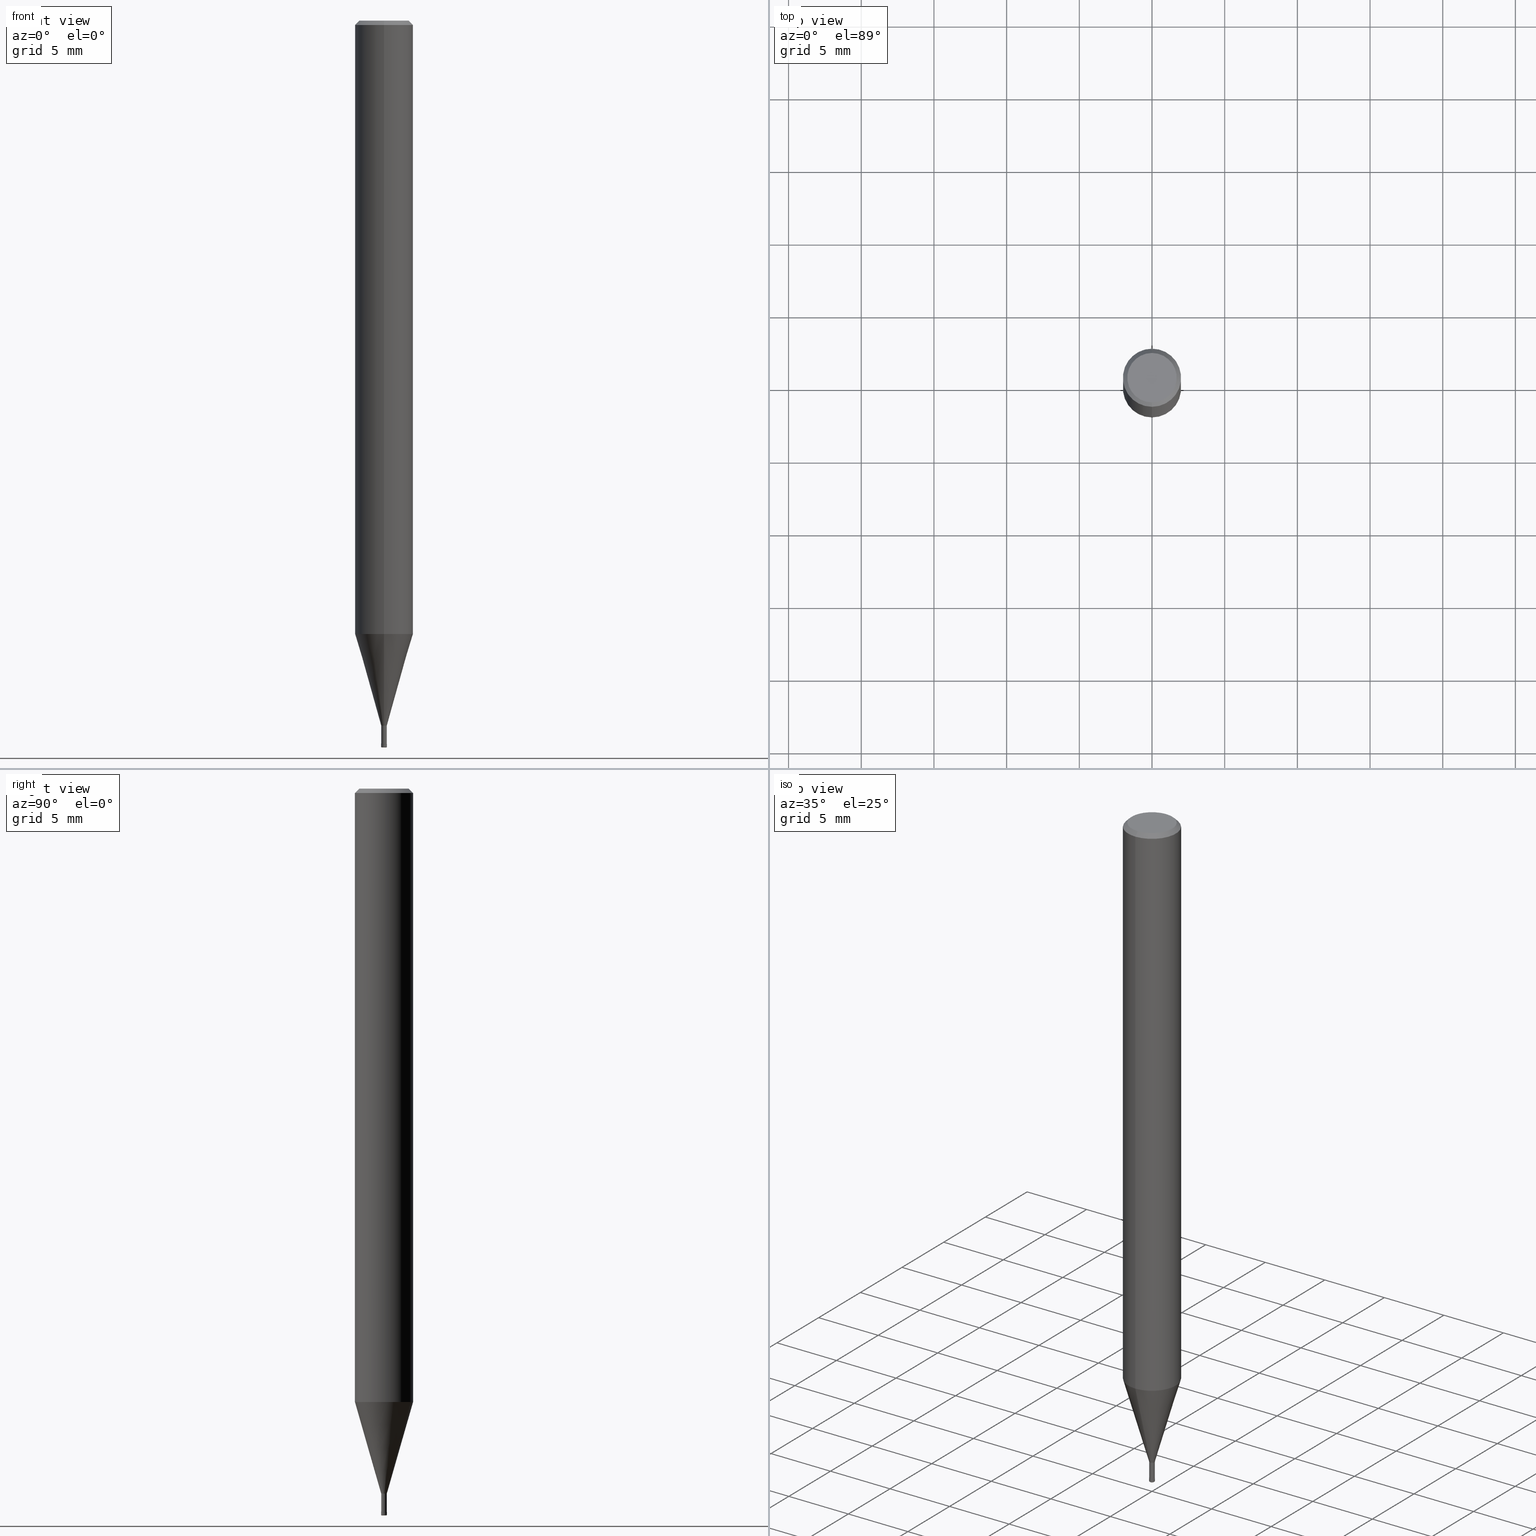
[diagram: canonical four-view strip — front | top / right | iso, engineering-drawing reading convention]
A machine part, canonical four-view strip (front | top / right | iso — engineering-drawing reading convention). The complete STEP part file that produces these views, byte-faithful:
ISO-10303-21;
HEADER;
FILE_DESCRIPTION(('no description'),'unknown implementation level');
FILE_NAME('HLRS4004-005-015-Huellk.stp','  ',('CIMSOURCE GmbH'),('CADClick - KiM GmbH - www.kimweb.de'),'unknown preprocess','ACIS','unknown authorization');
FILE_SCHEMA(('automotive_design'));
ENDSEC;
DATA;
#1=MECHANICAL_DESIGN_GEOMETRIC_PRESENTATION_REPRESENTATION(' ',(#14,#15,#16,#17,#18,#19,#20,#21,#22,#23,#24,#25,#26,#27,#28,#29,#30,#31,#32,#33,#34,#35,#36,#37,#38,#39,#40,#41,#42,#43,#44,#45,#46,#47,#48,#49,#50,#51,#52,#53,#54,#55,#56,#57,#58,#59,#60,#61,#62,#63,#64,#65,#66,#67,#68,#69,#70,#71,#72,#73,#74,#75,#76,#77,#78,#79,#80,#81,#82,#83,#84,#85,#86,#87,#88,#89,#90,#91,#92,#93,#94,#95,#96,#97,#98,#99,#100,#101,#102,#103,#104,#105,#106,#107,#108,#109,#110,#111,#112,#113,#114,#115,#116,#117,#118,#119,#120,#121),#10);
#2=PRODUCT_DEFINITION_CONTEXT('',#122,'design');
#3=APPLICATION_PROTOCOL_DEFINITION('INTERNATIONAL STANDARD','automotive_design',1994,#122);
#4=PRODUCT_CATEGORY_RELATIONSHIP('NONE','NONE',#123,#124);
#5=SHAPE_DEFINITION_REPRESENTATION(#125,#126);
#6=PRODUCT_DEFINITION_CONTEXT('',#127,'design');
#7=APPLICATION_PROTOCOL_DEFINITION('INTERNATIONAL STANDARD','automotive_design',1994,#127);
#8=PRODUCT_CATEGORY_RELATIONSHIP('NONE','NONE',#128,#129);
#9=SHAPE_DEFINITION_REPRESENTATION(#130,#131);
#10= (GEOMETRIC_REPRESENTATION_CONTEXT(3)GLOBAL_UNCERTAINTY_ASSIGNED_CONTEXT((#134))GLOBAL_UNIT_ASSIGNED_CONTEXT((#136,#137,#138))REPRESENTATION_CONTEXT('NONE','WORKSPACE'));
#14=STYLED_ITEM('',(#140),#141);
#15=STYLED_ITEM('',(#142),#143);
#16=STYLED_ITEM('',(#144),#145);
#17=STYLED_ITEM('',(#146),#147);
#18=STYLED_ITEM('',(#148),#149);
#19=STYLED_ITEM('',(#150),#151);
#20=STYLED_ITEM('',(#152),#153);
#21=STYLED_ITEM('',(#154),#155);
#22=STYLED_ITEM('',(#156),#157);
#23=STYLED_ITEM('',(#158),#159);
#24=STYLED_ITEM('',(#160),#161);
#25=STYLED_ITEM('',(#162),#163);
#26=STYLED_ITEM('',(#164),#165);
#27=STYLED_ITEM('',(#166),#167);
#28=STYLED_ITEM('',(#168),#169);
#29=STYLED_ITEM('',(#170),#171);
#30=STYLED_ITEM('',(#172),#173);
#31=STYLED_ITEM('',(#174),#175);
#32=STYLED_ITEM('',(#176),#177);
#33=STYLED_ITEM('',(#178),#179);
#34=STYLED_ITEM('',(#180),#181);
#35=STYLED_ITEM('',(#182),#183);
#36=STYLED_ITEM('',(#184),#185);
#37=STYLED_ITEM('',(#186),#187);
#38=STYLED_ITEM('',(#188),#189);
#39=STYLED_ITEM('',(#190),#191);
#40=STYLED_ITEM('',(#192),#193);
#41=STYLED_ITEM('',(#194),#195);
#42=STYLED_ITEM('',(#196),#197);
#43=STYLED_ITEM('',(#198),#199);
#44=STYLED_ITEM('',(#200),#201);
#45=STYLED_ITEM('',(#202),#203);
#46=STYLED_ITEM('',(#204),#205);
#47=STYLED_ITEM('',(#206),#207);
#48=STYLED_ITEM('',(#208),#209);
#49=STYLED_ITEM('',(#210),#211);
#50=STYLED_ITEM('',(#212),#213);
#51=STYLED_ITEM('',(#214),#215);
#52=STYLED_ITEM('',(#216),#217);
#53=STYLED_ITEM('',(#218),#219);
#54=STYLED_ITEM('',(#220),#221);
#55=STYLED_ITEM('',(#222),#223);
#56=STYLED_ITEM('',(#224),#225);
#57=STYLED_ITEM('',(#226),#227);
#58=STYLED_ITEM('',(#228),#229);
#59=STYLED_ITEM('',(#230),#231);
#60=STYLED_ITEM('',(#232),#233);
#61=STYLED_ITEM('',(#234),#235);
#62=STYLED_ITEM('',(#236),#237);
#63=STYLED_ITEM('',(#238),#239);
#64=STYLED_ITEM('',(#240),#241);
#65=STYLED_ITEM('',(#242),#243);
#66=STYLED_ITEM('',(#244),#245);
#67=STYLED_ITEM('',(#246),#247);
#68=STYLED_ITEM('',(#248),#249);
#69=STYLED_ITEM('',(#250),#251);
#70=STYLED_ITEM('',(#252),#253);
#71=STYLED_ITEM('',(#254),#255);
#72=STYLED_ITEM('',(#256),#257);
#73=STYLED_ITEM('',(#258),#259);
#74=STYLED_ITEM('',(#260),#261);
#75=STYLED_ITEM('',(#262),#263);
#76=STYLED_ITEM('',(#264),#265);
#77=STYLED_ITEM('',(#266),#267);
#78=STYLED_ITEM('',(#268),#269);
#79=STYLED_ITEM('',(#270),#271);
#80=STYLED_ITEM('',(#272),#273);
#81=STYLED_ITEM('',(#274),#275);
#82=STYLED_ITEM('',(#276),#277);
#83=STYLED_ITEM('',(#278),#279);
#84=STYLED_ITEM('',(#280),#281);
#85=STYLED_ITEM('',(#282),#283);
#86=STYLED_ITEM('',(#284),#285);
#87=STYLED_ITEM('',(#286),#287);
#88=STYLED_ITEM('',(#288),#289);
#89=STYLED_ITEM('',(#290),#291);
#90=STYLED_ITEM('',(#292),#293);
#91=STYLED_ITEM('',(#294),#295);
#92=STYLED_ITEM('',(#296),#297);
#93=STYLED_ITEM('',(#298),#299);
#94=STYLED_ITEM('',(#300),#301);
#95=STYLED_ITEM('',(#302),#303);
#96=STYLED_ITEM('',(#304),#305);
#97=STYLED_ITEM('',(#306),#307);
#98=STYLED_ITEM('',(#308),#309);
#99=STYLED_ITEM('',(#310),#311);
#100=STYLED_ITEM('',(#312),#313);
#101=STYLED_ITEM('',(#314),#315);
#102=STYLED_ITEM('',(#316),#317);
#103=STYLED_ITEM('',(#318),#319);
#104=STYLED_ITEM('',(#320),#321);
#105=STYLED_ITEM('',(#322),#323);
#106=STYLED_ITEM('',(#324),#325);
#107=STYLED_ITEM('',(#326),#327);
#108=STYLED_ITEM('',(#328),#329);
#109=STYLED_ITEM('',(#330),#331);
#110=STYLED_ITEM('',(#332),#333);
#111=STYLED_ITEM('',(#334),#335);
#112=STYLED_ITEM('',(#336),#337);
#113=STYLED_ITEM('',(#338),#339);
#114=STYLED_ITEM('',(#340),#341);
#115=STYLED_ITEM('',(#342),#343);
#116=STYLED_ITEM('',(#344),#345);
#117=STYLED_ITEM('',(#346),#347);
#118=STYLED_ITEM('',(#348),#349);
#119=STYLED_ITEM('',(#350),#351);
#120=STYLED_ITEM('',(#352),#353);
#121=STYLED_ITEM('',(#354),#355);
#122=APPLICATION_CONTEXT(' ');
#123=PRODUCT_CATEGORY('part','NONE');
#124=PRODUCT_RELATED_PRODUCT_CATEGORY('detail',' ',(#356));
#125=PRODUCT_DEFINITION_SHAPE('NONE','NONE',#357);
#126=ADVANCED_BREP_SHAPE_REPRESENTATION('1',(#259,#358),#10);
#127=APPLICATION_CONTEXT(' ');
#128=PRODUCT_CATEGORY('part','NONE');
#129=PRODUCT_RELATED_PRODUCT_CATEGORY('detail',' ',(#359));
#130=PRODUCT_DEFINITION_SHAPE('NONE','NONE',#360);
#131=ADVANCED_BREP_SHAPE_REPRESENTATION('2',(#195,#361),#10);
#134=UNCERTAINTY_MEASURE_WITH_UNIT(LENGTH_MEASURE(1.0E-006),#136,'','');
#136= (CONVERSION_BASED_UNIT('MILLIMETRE',#364)LENGTH_UNIT()NAMED_UNIT(#367));
#137= (NAMED_UNIT(#369)PLANE_ANGLE_UNIT()SI_UNIT($,.RADIAN.));
#138= (NAMED_UNIT(#369)SOLID_ANGLE_UNIT()SI_UNIT($,.STERADIAN.));
#140=PRESENTATION_STYLE_ASSIGNMENT((#375));
#141=ADVANCED_FACE('',(#376),#377,.T.);
#142=PRESENTATION_STYLE_ASSIGNMENT((#378));
#143=ADVANCED_FACE('',(#379,#380),#381,.T.);
#144=PRESENTATION_STYLE_ASSIGNMENT((#382));
#145=EDGE_CURVE('',#339,#327,#383,.T.);
#146=PRESENTATION_STYLE_ASSIGNMENT((#384));
#147=ADVANCED_FACE('',(#385),#386,.T.);
#148=PRESENTATION_STYLE_ASSIGNMENT((#387));
#149=ADVANCED_FACE('',(#388),#389,.T.);
#150=PRESENTATION_STYLE_ASSIGNMENT((#390));
#151=VERTEX_POINT('',#391);
#152=PRESENTATION_STYLE_ASSIGNMENT((#392));
#153=EDGE_CURVE('',#237,#313,#393,.T.);
#154=PRESENTATION_STYLE_ASSIGNMENT((#394));
#155=EDGE_CURVE('',#205,#151,#395,.T.);
#156=PRESENTATION_STYLE_ASSIGNMENT((#396));
#157=ADVANCED_FACE('',(#397),#398,.T.);
#158=PRESENTATION_STYLE_ASSIGNMENT((#399));
#159=ADVANCED_FACE('',(#400),#401,.T.);
#160=PRESENTATION_STYLE_ASSIGNMENT((#402));
#161=VERTEX_POINT('',#403);
#162=PRESENTATION_STYLE_ASSIGNMENT((#404));
#163=ADVANCED_FACE('',(#405,#406),#407,.T.);
#164=PRESENTATION_STYLE_ASSIGNMENT((#408));
#165=EDGE_CURVE('',#197,#151,#409,.T.);
#166=PRESENTATION_STYLE_ASSIGNMENT((#410));
#167=EDGE_CURVE('',#277,#291,#411,.T.);
#168=PRESENTATION_STYLE_ASSIGNMENT((#412));
#169=EDGE_CURVE('',#197,#321,#413,.T.);
#170=PRESENTATION_STYLE_ASSIGNMENT((#414));
#171=ADVANCED_FACE('',(#415),#416,.T.);
#172=PRESENTATION_STYLE_ASSIGNMENT((#417));
#173=ADVANCED_FACE('',(#418),#419,.T.);
#174=PRESENTATION_STYLE_ASSIGNMENT((#420));
#175=ADVANCED_FACE('',(#421,#422),#423,.T.);
#176=PRESENTATION_STYLE_ASSIGNMENT((#424));
#177=EDGE_CURVE('',#341,#325,#425,.T.);
#178=PRESENTATION_STYLE_ASSIGNMENT((#426));
#179=EDGE_CURVE('',#219,#331,#427,.T.);
#180=PRESENTATION_STYLE_ASSIGNMENT((#428));
#181=ADVANCED_FACE('',(#429),#430,.T.);
#182=PRESENTATION_STYLE_ASSIGNMENT((#431));
#183=VERTEX_POINT('',#432);
#184=PRESENTATION_STYLE_ASSIGNMENT((#433));
#185=ADVANCED_FACE('',(#434),#435,.T.);
#186=PRESENTATION_STYLE_ASSIGNMENT((#436));
#187=ADVANCED_FACE('',(#437),#438,.F.);
#188=PRESENTATION_STYLE_ASSIGNMENT((#439));
#189=EDGE_CURVE('',#277,#245,#440,.T.);
#190=PRESENTATION_STYLE_ASSIGNMENT((#441));
#191=EDGE_CURVE('',#289,#285,#442,.T.);
#192=PRESENTATION_STYLE_ASSIGNMENT((#443));
#193=EDGE_CURVE('',#313,#299,#444,.T.);
#194=PRESENTATION_STYLE_ASSIGNMENT((#445));
#195=MANIFOLD_SOLID_BREP('2',#446);
#196=PRESENTATION_STYLE_ASSIGNMENT((#447));
#197=VERTEX_POINT('',#448);
#198=PRESENTATION_STYLE_ASSIGNMENT((#449));
#199=EDGE_CURVE('',#321,#327,#450,.T.);
#200=PRESENTATION_STYLE_ASSIGNMENT((#451));
#201=EDGE_CURVE('',#277,#215,#452,.T.);
#202=PRESENTATION_STYLE_ASSIGNMENT((#453));
#203=EDGE_CURVE('',#313,#279,#454,.T.);
#204=PRESENTATION_STYLE_ASSIGNMENT((#455));
#205=VERTEX_POINT('',#456);
#206=PRESENTATION_STYLE_ASSIGNMENT((#457));
#207=EDGE_CURVE('',#289,#331,#458,.T.);
#208=PRESENTATION_STYLE_ASSIGNMENT((#459));
#209=VERTEX_POINT('',#460);
#210=PRESENTATION_STYLE_ASSIGNMENT((#461));
#211=EDGE_CURVE('',#341,#209,#462,.T.);
#212=PRESENTATION_STYLE_ASSIGNMENT((#463));
#213=ADVANCED_FACE('',(#464),#465,.F.);
#214=PRESENTATION_STYLE_ASSIGNMENT((#466));
#215=VERTEX_POINT('',#467);
#216=PRESENTATION_STYLE_ASSIGNMENT((#468));
#217=EDGE_CURVE('',#327,#339,#469,.T.);
#218=PRESENTATION_STYLE_ASSIGNMENT((#470));
#219=VERTEX_POINT('',#471);
#220=PRESENTATION_STYLE_ASSIGNMENT((#472));
#221=ADVANCED_FACE('',(#473),#474,.T.);
#222=PRESENTATION_STYLE_ASSIGNMENT((#475));
#223=EDGE_CURVE('',#229,#245,#476,.T.);
#224=PRESENTATION_STYLE_ASSIGNMENT((#477));
#225=EDGE_CURVE('',#325,#295,#478,.T.);
#226=PRESENTATION_STYLE_ASSIGNMENT((#479));
#227=EDGE_CURVE('',#263,#295,#480,.T.);
#228=PRESENTATION_STYLE_ASSIGNMENT((#481));
#229=VERTEX_POINT('',#482);
#230=PRESENTATION_STYLE_ASSIGNMENT((#483));
#231=EDGE_CURVE('',#299,#317,#484,.T.);
#232=PRESENTATION_STYLE_ASSIGNMENT((#485));
#233=EDGE_CURVE('',#347,#325,#486,.T.);
#234=PRESENTATION_STYLE_ASSIGNMENT((#487));
#235=ADVANCED_FACE('',(#488),#489,.T.);
#236=PRESENTATION_STYLE_ASSIGNMENT((#490));
#237=VERTEX_POINT('',#491);
#238=PRESENTATION_STYLE_ASSIGNMENT((#492));
#239=EDGE_CURVE('',#291,#277,#493,.T.);
#240=PRESENTATION_STYLE_ASSIGNMENT((#494));
#241=EDGE_CURVE('',#285,#289,#495,.T.);
#242=PRESENTATION_STYLE_ASSIGNMENT((#496));
#243=EDGE_CURVE('',#219,#285,#497,.T.);
#244=PRESENTATION_STYLE_ASSIGNMENT((#498));
#245=VERTEX_POINT('',#499);
#246=PRESENTATION_STYLE_ASSIGNMENT((#500));
#247=VERTEX_POINT('',#501);
#248=PRESENTATION_STYLE_ASSIGNMENT((#502));
#249=ADVANCED_FACE('',(#503,#504),#505,.T.);
#250=PRESENTATION_STYLE_ASSIGNMENT((#506));
#251=ADVANCED_FACE('',(#507),#508,.T.);
#252=PRESENTATION_STYLE_ASSIGNMENT((#509));
#253=EDGE_CURVE('',#183,#247,#510,.T.);
#254=PRESENTATION_STYLE_ASSIGNMENT((#511));
#255=ADVANCED_FACE('',(#512),#513,.T.);
#256=PRESENTATION_STYLE_ASSIGNMENT((#514));
#257=EDGE_CURVE('',#161,#291,#515,.T.);
#258=PRESENTATION_STYLE_ASSIGNMENT((#516));
#259=MANIFOLD_SOLID_BREP('1',#517);
#260=PRESENTATION_STYLE_ASSIGNMENT((#518));
#261=EDGE_CURVE('',#295,#263,#519,.T.);
#262=PRESENTATION_STYLE_ASSIGNMENT((#520));
#263=VERTEX_POINT('',#521);
#264=PRESENTATION_STYLE_ASSIGNMENT((#522));
#265=EDGE_CURVE('',#317,#299,#523,.T.);
#266=PRESENTATION_STYLE_ASSIGNMENT((#524));
#267=EDGE_CURVE('',#209,#341,#525,.T.);
#268=PRESENTATION_STYLE_ASSIGNMENT((#526));
#269=EDGE_CURVE('',#305,#237,#527,.T.);
#270=PRESENTATION_STYLE_ASSIGNMENT((#528));
#271=EDGE_CURVE('',#347,#209,#529,.T.);
#272=PRESENTATION_STYLE_ASSIGNMENT((#530));
#273=EDGE_CURVE('',#247,#183,#531,.T.);
#274=PRESENTATION_STYLE_ASSIGNMENT((#532));
#275=EDGE_CURVE('',#279,#313,#533,.T.);
#276=PRESENTATION_STYLE_ASSIGNMENT((#534));
#277=VERTEX_POINT('',#535);
#278=PRESENTATION_STYLE_ASSIGNMENT((#536));
#279=VERTEX_POINT('',#537);
#280=PRESENTATION_STYLE_ASSIGNMENT((#538));
#281=EDGE_CURVE('',#285,#183,#539,.T.);
#282=PRESENTATION_STYLE_ASSIGNMENT((#540));
#283=EDGE_CURVE('',#331,#219,#541,.T.);
#284=PRESENTATION_STYLE_ASSIGNMENT((#542));
#285=VERTEX_POINT('',#543);
#286=PRESENTATION_STYLE_ASSIGNMENT((#544));
#287=EDGE_CURVE('',#237,#305,#545,.T.);
#288=PRESENTATION_STYLE_ASSIGNMENT((#546));
#289=VERTEX_POINT('',#547);
#290=PRESENTATION_STYLE_ASSIGNMENT((#548));
#291=VERTEX_POINT('',#549);
#292=PRESENTATION_STYLE_ASSIGNMENT((#550));
#293=EDGE_CURVE('',#151,#197,#551,.T.);
#294=PRESENTATION_STYLE_ASSIGNMENT((#552));
#295=VERTEX_POINT('',#553);
#296=PRESENTATION_STYLE_ASSIGNMENT((#554));
#297=EDGE_CURVE('',#325,#347,#555,.T.);
#298=PRESENTATION_STYLE_ASSIGNMENT((#556));
#299=VERTEX_POINT('',#557);
#300=PRESENTATION_STYLE_ASSIGNMENT((#558));
#301=ADVANCED_FACE('',(#559),#560,.T.);
#302=PRESENTATION_STYLE_ASSIGNMENT((#561));
#303=ADVANCED_FACE('',(#562),#563,.T.);
#304=PRESENTATION_STYLE_ASSIGNMENT((#564));
#305=VERTEX_POINT('',#565);
#306=PRESENTATION_STYLE_ASSIGNMENT((#566));
#307=EDGE_CURVE('',#247,#289,#567,.T.);
#308=PRESENTATION_STYLE_ASSIGNMENT((#568));
#309=ADVANCED_FACE('',(#569),#570,.F.);
#310=PRESENTATION_STYLE_ASSIGNMENT((#571));
#311=EDGE_CURVE('',#229,#291,#572,.T.);
#312=PRESENTATION_STYLE_ASSIGNMENT((#573));
#313=VERTEX_POINT('',#574);
#314=PRESENTATION_STYLE_ASSIGNMENT((#575));
#315=EDGE_CURVE('',#279,#305,#576,.T.);
#316=PRESENTATION_STYLE_ASSIGNMENT((#577));
#317=VERTEX_POINT('',#578);
#318=PRESENTATION_STYLE_ASSIGNMENT((#579));
#319=ADVANCED_FACE('',(#580),#581,.T.);
#320=PRESENTATION_STYLE_ASSIGNMENT((#582));
#321=VERTEX_POINT('',#583);
#322=PRESENTATION_STYLE_ASSIGNMENT((#584));
#323=EDGE_CURVE('',#321,#205,#585,.T.);
#324=PRESENTATION_STYLE_ASSIGNMENT((#586));
#325=VERTEX_POINT('',#587);
#326=PRESENTATION_STYLE_ASSIGNMENT((#588));
#327=VERTEX_POINT('',#589);
#328=PRESENTATION_STYLE_ASSIGNMENT((#590));
#329=EDGE_CURVE('',#161,#215,#591,.T.);
#330=PRESENTATION_STYLE_ASSIGNMENT((#592));
#331=VERTEX_POINT('',#593);
#332=PRESENTATION_STYLE_ASSIGNMENT((#594));
#333=ADVANCED_FACE('',(#595),#596,.T.);
#334=PRESENTATION_STYLE_ASSIGNMENT((#597));
#335=EDGE_CURVE('',#205,#321,#598,.T.);
#336=PRESENTATION_STYLE_ASSIGNMENT((#599));
#337=ADVANCED_FACE('',(#600),#601,.F.);
#338=PRESENTATION_STYLE_ASSIGNMENT((#602));
#339=VERTEX_POINT('',#603);
#340=PRESENTATION_STYLE_ASSIGNMENT((#604));
#341=VERTEX_POINT('',#605);
#342=PRESENTATION_STYLE_ASSIGNMENT((#606));
#343=ADVANCED_FACE('',(#607),#608,.T.);
#344=PRESENTATION_STYLE_ASSIGNMENT((#609));
#345=EDGE_CURVE('',#317,#279,#610,.T.);
#346=PRESENTATION_STYLE_ASSIGNMENT((#611));
#347=VERTEX_POINT('',#612);
#348=PRESENTATION_STYLE_ASSIGNMENT((#613));
#349=EDGE_CURVE('',#263,#347,#614,.T.);
#350=PRESENTATION_STYLE_ASSIGNMENT((#615));
#351=EDGE_CURVE('',#245,#229,#616,.T.);
#352=PRESENTATION_STYLE_ASSIGNMENT((#617));
#353=EDGE_CURVE('',#215,#161,#618,.T.);
#354=PRESENTATION_STYLE_ASSIGNMENT((#619));
#355=EDGE_CURVE('',#339,#205,#620,.T.);
#356=PRODUCT('1','1','PART-1-DESC',(#621));
#357=PRODUCT_DEFINITION('NONE','NONE',#622,#2);
#358=AXIS2_PLACEMENT_3D('',#623,#624,#625);
#359=PRODUCT('2','2','PART-2-DESC',(#626));
#360=PRODUCT_DEFINITION('NONE','NONE',#627,#6);
#361=AXIS2_PLACEMENT_3D('',#628,#629,#630);
#364=LENGTH_MEASURE_WITH_UNIT(LENGTH_MEASURE(1.0),#631);
#367=DIMENSIONAL_EXPONENTS(1.0,0.0,0.0,0.0,0.0,0.0,0.0);
#369=DIMENSIONAL_EXPONENTS(0.0,0.0,0.0,0.0,0.0,0.0,0.0);
#375=SURFACE_STYLE_USAGE(.BOTH.,#632);
#376=FACE_OUTER_BOUND('',#633,.T.);
#377=CYLINDRICAL_SURFACE('',#634,0.09);
#378=SURFACE_STYLE_USAGE(.BOTH.,#635);
#379=FACE_OUTER_BOUND('',#636,.T.);
#380=FACE_BOUND('',#637,.T.);
#381=PLANE('',#638);
#382=CURVE_STYLE('',#639,POSITIVE_LENGTH_MEASURE(1.0E-006),#640);
#383=CIRCLE('',#641,0.1949);
#384=SURFACE_STYLE_USAGE(.BOTH.,#642);
#385=FACE_OUTER_BOUND('',#643,.T.);
#386=CONICAL_SURFACE('',#644,1.0962,0.279231732547063);
#387=SURFACE_STYLE_USAGE(.BOTH.,#645);
#388=FACE_OUTER_BOUND('',#646,.T.);
#389=CONICAL_SURFACE('',#647,0.19995,0.000526315740875831);
#390=POINT_STYLE(' ',#648,POSITIVE_LENGTH_MEASURE(1.0E-006),#649);
#391=CARTESIAN_POINT('',(0.0,0.09,-49.99));
#392=CURVE_STYLE('',#650,POSITIVE_LENGTH_MEASURE(1.0E-006),#651);
#393=LINE('',#652,#653);
#394=CURVE_STYLE('',#654,POSITIVE_LENGTH_MEASURE(1.0E-006),#655);
#395=LINE('',#656,#657);
#396=SURFACE_STYLE_USAGE(.BOTH.,#658);
#397=FACE_OUTER_BOUND('',#659,.T.);
#398=CONICAL_SURFACE('',#660,1.85,0.785398163397453);
#399=SURFACE_STYLE_USAGE(.BOTH.,#661);
#400=FACE_OUTER_BOUND('',#662,.T.);
#401=PLANE('',#663);
#402=POINT_STYLE(' ',#664,POSITIVE_LENGTH_MEASURE(1.0E-006),#665);
#403=CARTESIAN_POINT('',(0.0,0.15,-49.99));
#404=SURFACE_STYLE_USAGE(.BOTH.,#666);
#405=FACE_BOUND('',#667,.T.);
#406=FACE_OUTER_BOUND('',#668,.T.);
#407=PLANE('',#669);
#408=CURVE_STYLE('',#670,POSITIVE_LENGTH_MEASURE(1.0E-006),#671);
#409=CIRCLE('',#672,0.09);
#410=CURVE_STYLE('',#673,POSITIVE_LENGTH_MEASURE(1.0E-006),#674);
#411=CIRCLE('',#675,0.2);
#412=CURVE_STYLE('',#676,POSITIVE_LENGTH_MEASURE(1.0E-006),#677);
#413=LINE('',#678,#679);
#414=SURFACE_STYLE_USAGE(.BOTH.,#680);
#415=FACE_OUTER_BOUND('',#681,.T.);
#416=CYLINDRICAL_SURFACE('',#682,0.09);
#417=SURFACE_STYLE_USAGE(.BOTH.,#683);
#418=FACE_OUTER_BOUND('',#684,.T.);
#419=CONICAL_SURFACE('',#685,1.0962,0.279231732547063);
#420=SURFACE_STYLE_USAGE(.BOTH.,#686);
#421=FACE_OUTER_BOUND('',#687,.T.);
#422=FACE_BOUND('',#688,.T.);
#423=PLANE('',#689);
#424=CURVE_STYLE('',#690,POSITIVE_LENGTH_MEASURE(1.0E-006),#691);
#425=LINE('',#692,#693);
#426=CURVE_STYLE('',#694,POSITIVE_LENGTH_MEASURE(1.0E-006),#695);
#427=CIRCLE('',#696,0.19495);
#428=SURFACE_STYLE_USAGE(.BOTH.,#697);
#429=FACE_OUTER_BOUND('',#698,.T.);
#430=CYLINDRICAL_SURFACE('',#699,2.0);
#431=POINT_STYLE(' ',#700,POSITIVE_LENGTH_MEASURE(1.0E-006),#701);
#432=CARTESIAN_POINT('',(0.0,0.09,-49.93));
#433=SURFACE_STYLE_USAGE(.BOTH.,#702);
#434=FACE_OUTER_BOUND('',#703,.T.);
#435=CYLINDRICAL_SURFACE('',#704,2.0);
#436=SURFACE_STYLE_USAGE(.BOTH.,#705);
#437=FACE_OUTER_BOUND('',#706,.T.);
#438=CYLINDRICAL_SURFACE('',#707,0.09);
#439=CURVE_STYLE('',#708,POSITIVE_LENGTH_MEASURE(1.0E-006),#709);
#440=LINE('',#710,#711);
#441=CURVE_STYLE('',#712,POSITIVE_LENGTH_MEASURE(1.0E-006),#713);
#442=CIRCLE('',#714,0.09);
#443=CURVE_STYLE('',#715,POSITIVE_LENGTH_MEASURE(1.0E-006),#716);
#444=LINE('',#717,#718);
#445=SURFACE_STYLE_USAGE(.BOTH.,#719);
#446=CLOSED_SHELL('',(#309,#319,#255,#337,#213,#143,#149,#221,#163,#187));
#447=POINT_STYLE(' ',#720,POSITIVE_LENGTH_MEASURE(1.0E-006),#721);
#448=CARTESIAN_POINT('',(1.10214571844014E-017,-0.09,-49.99));
#449=CURVE_STYLE('',#722,POSITIVE_LENGTH_MEASURE(1.0E-006),#723);
#450=LINE('',#724,#725);
#451=CURVE_STYLE('',#726,POSITIVE_LENGTH_MEASURE(1.0E-006),#727);
#452=CIRCLE('',#728,0.05);
#453=CURVE_STYLE('',#729,POSITIVE_LENGTH_MEASURE(1.0E-006),#730);
#454=CIRCLE('',#731,0.19245);
#455=POINT_STYLE(' ',#732,POSITIVE_LENGTH_MEASURE(1.0E-006),#733);
#456=CARTESIAN_POINT('',(0.0,0.09,-49.76));
#457=CURVE_STYLE('',#734,POSITIVE_LENGTH_MEASURE(1.0E-006),#735);
#458=LINE('',#736,#737);
#459=POINT_STYLE(' ',#738,POSITIVE_LENGTH_MEASURE(1.0E-006),#739);
#460=CARTESIAN_POINT('',(2.08183080149804E-016,-1.7,0.00999999999999801));
#461=CURVE_STYLE('',#740,POSITIVE_LENGTH_MEASURE(1.0E-006),#741);
#462=CIRCLE('',#742,1.7);
#463=SURFACE_STYLE_USAGE(.BOTH.,#743);
#464=FACE_OUTER_BOUND('',#744,.T.);
#465=CONICAL_SURFACE('',#745,0.14245,1.47575464789401);
#466=POINT_STYLE(' ',#746,POSITIVE_LENGTH_MEASURE(1.0E-006),#747);
#467=CARTESIAN_POINT('',(1.83690953073357E-017,-0.15,-49.99));
#468=CURVE_STYLE('',#748,POSITIVE_LENGTH_MEASURE(1.0E-006),#749);
#469=CIRCLE('',#750,0.1949);
#470=POINT_STYLE(' ',#751,POSITIVE_LENGTH_MEASURE(1.0E-006),#752);
#471=CARTESIAN_POINT('',(0.0,0.19495,-49.75));
#472=SURFACE_STYLE_USAGE(.BOTH.,#753);
#473=FACE_OUTER_BOUND('',#754,.T.);
#474=TOROIDAL_SURFACE('',#755,0.15,0.05);
#475=CURVE_STYLE('',#756,POSITIVE_LENGTH_MEASURE(1.0E-006),#757);
#476=CIRCLE('',#758,0.1999);
#477=CURVE_STYLE('',#759,POSITIVE_LENGTH_MEASURE(1.0E-006),#760);
#478=LINE('',#761,#762);
#479=CURVE_STYLE('',#763,POSITIVE_LENGTH_MEASURE(1.0E-006),#764);
#480=CIRCLE('',#765,2.0);
#481=POINT_STYLE(' ',#766,POSITIVE_LENGTH_MEASURE(1.0E-006),#767);
#482=CARTESIAN_POINT('',(0.0,0.1999,-49.75));
#483=CURVE_STYLE('',#768,POSITIVE_LENGTH_MEASURE(1.0E-006),#769);
#484=CIRCLE('',#770,0.19245);
#485=CURVE_STYLE('',#771,POSITIVE_LENGTH_MEASURE(1.0E-006),#772);
#486=CIRCLE('',#773,2.0);
#487=SURFACE_STYLE_USAGE(.BOTH.,#774);
#488=FACE_OUTER_BOUND('',#775,.T.);
#489=CONICAL_SURFACE('',#776,0.142475,1.47579965541249);
#490=POINT_STYLE(' ',#777,POSITIVE_LENGTH_MEASURE(1.0E-006),#778);
#491=CARTESIAN_POINT('',(0.0,1.99995,-42.186));
#492=CURVE_STYLE('',#779,POSITIVE_LENGTH_MEASURE(1.0E-006),#780);
#493=CIRCLE('',#781,0.2);
#494=CURVE_STYLE('',#782,POSITIVE_LENGTH_MEASURE(1.0E-006),#783);
#495=CIRCLE('',#784,0.09);
#496=CURVE_STYLE('',#785,POSITIVE_LENGTH_MEASURE(1.0E-006),#786);
#497=LINE('',#787,#788);
#498=POINT_STYLE(' ',#789,POSITIVE_LENGTH_MEASURE(1.0E-006),#790);
#499=CARTESIAN_POINT('',(2.44798810129093E-017,-0.1999,-49.75));
#500=POINT_STYLE(' ',#791,POSITIVE_LENGTH_MEASURE(1.0E-006),#792);
#501=CARTESIAN_POINT('',(1.10214571844014E-017,-0.09,-49.93));
#502=SURFACE_STYLE_USAGE(.BOTH.,#793);
#503=FACE_OUTER_BOUND('',#794,.T.);
#504=FACE_BOUND('',#795,.T.);
#505=PLANE('',#796);
#506=SURFACE_STYLE_USAGE(.BOTH.,#797);
#507=FACE_OUTER_BOUND('',#798,.T.);
#508=CONICAL_SURFACE('',#799,0.142475,1.47579965541249);
#509=CURVE_STYLE('',#800,POSITIVE_LENGTH_MEASURE(1.0E-006),#801);
#510=CIRCLE('',#802,0.09);
#511=SURFACE_STYLE_USAGE(.BOTH.,#803);
#512=FACE_OUTER_BOUND('',#804,.T.);
#513=CONICAL_SURFACE('',#805,0.19995,0.000526315740875831);
#514=CURVE_STYLE('',#806,POSITIVE_LENGTH_MEASURE(1.0E-006),#807);
#515=CIRCLE('',#808,0.05);
#516=SURFACE_STYLE_USAGE(.BOTH.,#809);
#517=CLOSED_SHELL('',(#141,#235,#333,#173,#185,#303,#175,#301,#157,#181,#147,#343,#249,#251,#171,#159));
#518=CURVE_STYLE('',#810,POSITIVE_LENGTH_MEASURE(1.0E-006),#811);
#519=CIRCLE('',#812,2.0);
#520=POINT_STYLE(' ',#813,POSITIVE_LENGTH_MEASURE(1.0E-006),#814);
#521=CARTESIAN_POINT('',(2.44921270764475E-016,-2.0,-42.186));
#522=CURVE_STYLE('',#815,POSITIVE_LENGTH_MEASURE(1.0E-006),#816);
#523=CIRCLE('',#817,0.19245);
#524=CURVE_STYLE('',#818,POSITIVE_LENGTH_MEASURE(1.0E-006),#819);
#525=CIRCLE('',#820,1.7);
#526=CURVE_STYLE('',#821,POSITIVE_LENGTH_MEASURE(1.0E-006),#822);
#527=CIRCLE('',#823,1.99995);
#528=CURVE_STYLE('',#824,POSITIVE_LENGTH_MEASURE(1.0E-006),#825);
#529=LINE('',#826,#827);
#530=CURVE_STYLE('',#828,POSITIVE_LENGTH_MEASURE(1.0E-006),#829);
#531=CIRCLE('',#830,0.09);
#532=CURVE_STYLE('',#831,POSITIVE_LENGTH_MEASURE(1.0E-006),#832);
#533=CIRCLE('',#833,0.19245);
#534=POINT_STYLE(' ',#834,POSITIVE_LENGTH_MEASURE(1.0E-006),#835);
#535=CARTESIAN_POINT('',(2.44921270764475E-017,-0.2,-49.94));
#536=POINT_STYLE(' ',#836,POSITIVE_LENGTH_MEASURE(1.0E-006),#837);
#537=CARTESIAN_POINT('',(2.35675492793117E-017,-0.19245,-48.49));
#538=CURVE_STYLE('',#838,POSITIVE_LENGTH_MEASURE(1.0E-006),#839);
#539=LINE('',#840,#841);
#540=CURVE_STYLE('',#842,POSITIVE_LENGTH_MEASURE(1.0E-006),#843);
#541=CIRCLE('',#844,0.19495);
#542=POINT_STYLE(' ',#845,POSITIVE_LENGTH_MEASURE(1.0E-006),#846);
#543=CARTESIAN_POINT('',(0.0,0.09,-49.76));
#544=CURVE_STYLE('',#847,POSITIVE_LENGTH_MEASURE(1.0E-006),#848);
#545=CIRCLE('',#849,1.99995);
#546=POINT_STYLE(' ',#850,POSITIVE_LENGTH_MEASURE(1.0E-006),#851);
#547=CARTESIAN_POINT('',(1.10214571844014E-017,-0.09,-49.76));
#548=POINT_STYLE(' ',#852,POSITIVE_LENGTH_MEASURE(1.0E-006),#853);
#549=CARTESIAN_POINT('',(0.0,0.2,-49.94));
#550=CURVE_STYLE('',#854,POSITIVE_LENGTH_MEASURE(1.0E-006),#855);
#551=CIRCLE('',#856,0.09);
#552=POINT_STYLE(' ',#857,POSITIVE_LENGTH_MEASURE(1.0E-006),#858);
#553=CARTESIAN_POINT('',(0.0,2.0,-42.186));
#554=CURVE_STYLE('',#859,POSITIVE_LENGTH_MEASURE(1.0E-006),#860);
#555=CIRCLE('',#861,2.0);
#556=POINT_STYLE(' ',#862,POSITIVE_LENGTH_MEASURE(1.0E-006),#863);
#557=CARTESIAN_POINT('',(0.0,0.19245,-49.75));
#558=SURFACE_STYLE_USAGE(.BOTH.,#864);
#559=FACE_OUTER_BOUND('',#865,.T.);
#560=PLANE('',#866);
#561=SURFACE_STYLE_USAGE(.BOTH.,#867);
#562=FACE_OUTER_BOUND('',#868,.T.);
#563=CONICAL_SURFACE('',#869,1.85,0.785398163397453);
#564=POINT_STYLE(' ',#870,POSITIVE_LENGTH_MEASURE(1.0E-006),#871);
#565=CARTESIAN_POINT('',(2.44915147732706E-016,-1.99995,-42.186));
#566=CURVE_STYLE('',#872,POSITIVE_LENGTH_MEASURE(1.0E-006),#873);
#567=LINE('',#874,#875);
#568=SURFACE_STYLE_USAGE(.BOTH.,#876);
#569=FACE_OUTER_BOUND('',#877,.T.);
#570=CYLINDRICAL_SURFACE('',#878,0.09);
#571=CURVE_STYLE('',#879,POSITIVE_LENGTH_MEASURE(1.0E-006),#880);
#572=LINE('',#881,#882);
#573=POINT_STYLE(' ',#883,POSITIVE_LENGTH_MEASURE(1.0E-006),#884);
#574=CARTESIAN_POINT('',(0.0,0.19245,-48.49));
#575=CURVE_STYLE('',#885,POSITIVE_LENGTH_MEASURE(1.0E-006),#886);
#576=LINE('',#887,#888);
#577=POINT_STYLE(' ',#889,POSITIVE_LENGTH_MEASURE(1.0E-006),#890);
#578=CARTESIAN_POINT('',(2.35675492793117E-017,-0.19245,-49.75));
#579=SURFACE_STYLE_USAGE(.BOTH.,#891);
#580=FACE_OUTER_BOUND('',#892,.T.);
#581=TOROIDAL_SURFACE('',#893,0.15,0.05);
#582=POINT_STYLE(' ',#894,POSITIVE_LENGTH_MEASURE(1.0E-006),#895);
#583=CARTESIAN_POINT('',(1.10214571844014E-017,-0.09,-49.76));
#584=CURVE_STYLE('',#896,POSITIVE_LENGTH_MEASURE(1.0E-006),#897);
#585=CIRCLE('',#898,0.09);
#586=POINT_STYLE(' ',#899,POSITIVE_LENGTH_MEASURE(1.0E-006),#900);
#587=CARTESIAN_POINT('',(0.0,2.0,-0.289999999999999));
#588=POINT_STYLE(' ',#901,POSITIVE_LENGTH_MEASURE(1.0E-006),#902);
#589=CARTESIAN_POINT('',(2.38675778359981E-017,-0.1949,-49.75));
#590=CURVE_STYLE('',#903,POSITIVE_LENGTH_MEASURE(1.0E-006),#904);
#591=CIRCLE('',#905,0.15);
#592=POINT_STYLE(' ',#906,POSITIVE_LENGTH_MEASURE(1.0E-006),#907);
#593=CARTESIAN_POINT('',(2.38737008677672E-017,-0.19495,-49.75));
#594=SURFACE_STYLE_USAGE(.BOTH.,#908);
#595=FACE_OUTER_BOUND('',#909,.T.);
#596=CYLINDRICAL_SURFACE('',#910,0.19245);
#597=CURVE_STYLE('',#911,POSITIVE_LENGTH_MEASURE(1.0E-006),#912);
#598=CIRCLE('',#913,0.09);
#599=SURFACE_STYLE_USAGE(.BOTH.,#914);
#600=FACE_OUTER_BOUND('',#915,.T.);
#601=CONICAL_SURFACE('',#916,0.14245,1.47575464789401);
#602=POINT_STYLE(' ',#917,POSITIVE_LENGTH_MEASURE(1.0E-006),#918);
#603=CARTESIAN_POINT('',(0.0,0.1949,-49.75));
#604=POINT_STYLE(' ',#919,POSITIVE_LENGTH_MEASURE(1.0E-006),#920);
#605=CARTESIAN_POINT('',(0.0,1.7,0.00999999999999801));
#606=SURFACE_STYLE_USAGE(.BOTH.,#921);
#607=FACE_OUTER_BOUND('',#922,.T.);
#608=CYLINDRICAL_SURFACE('',#923,0.19245);
#609=CURVE_STYLE('',#924,POSITIVE_LENGTH_MEASURE(1.0E-006),#925);
#610=LINE('',#926,#927);
#611=POINT_STYLE(' ',#928,POSITIVE_LENGTH_MEASURE(1.0E-006),#929);
#612=CARTESIAN_POINT('',(2.44921270764475E-016,-2.0,-0.289999999999999));
#613=CURVE_STYLE('',#930,POSITIVE_LENGTH_MEASURE(1.0E-006),#931);
#614=LINE('',#932,#933);
#615=CURVE_STYLE('',#934,POSITIVE_LENGTH_MEASURE(1.0E-006),#935);
#616=CIRCLE('',#936,0.1999);
#617=CURVE_STYLE('',#937,POSITIVE_LENGTH_MEASURE(1.0E-006),#938);
#618=CIRCLE('',#939,0.15);
#619=CURVE_STYLE('',#940,POSITIVE_LENGTH_MEASURE(1.0E-006),#941);
#620=LINE('',#942,#943);
#621=PRODUCT_CONTEXT('',#122,'mechanical');
#622=PRODUCT_DEFINITION_FORMATION_WITH_SPECIFIED_SOURCE(' ','NONE',#356,.NOT_KNOWN.);
#623=CARTESIAN_POINT('',(0.0,0.0,0.0));
#624=DIRECTION('',(0.0,0.0,1.0));
#625=DIRECTION('',(1.0,0.0,0.0));
#626=PRODUCT_CONTEXT('',#127,'mechanical');
#627=PRODUCT_DEFINITION_FORMATION_WITH_SPECIFIED_SOURCE(' ','NONE',#359,.NOT_KNOWN.);
#628=CARTESIAN_POINT('',(0.0,0.0,0.0));
#629=DIRECTION('',(0.0,0.0,1.0));
#630=DIRECTION('',(1.0,0.0,0.0));
#631= (NAMED_UNIT(#367)LENGTH_UNIT()SI_UNIT(.MILLI.,.METRE.));
#632=SURFACE_SIDE_STYLE('',(#945));
#633=EDGE_LOOP('',(#946,#947,#948,#949));
#634=AXIS2_PLACEMENT_3D('',#950,#951,#952);
#635=SURFACE_SIDE_STYLE('',(#953));
#636=EDGE_LOOP('',(#954,#955));
#637=EDGE_LOOP('',(#956,#957));
#638=AXIS2_PLACEMENT_3D('',#958,#959,#960);
#639=DRAUGHTING_PRE_DEFINED_CURVE_FONT('continuous');
#640=COLOUR_RGB('',0.800000011920929,0.800000011920929,0.800000011920929);
#641=AXIS2_PLACEMENT_3D('',#961,#962,#963);
#642=SURFACE_SIDE_STYLE('',(#964));
#643=EDGE_LOOP('',(#965,#966,#967,#968));
#644=AXIS2_PLACEMENT_3D('',#969,#970,#971);
#645=SURFACE_SIDE_STYLE('',(#972));
#646=EDGE_LOOP('',(#973,#974,#975,#976));
#647=AXIS2_PLACEMENT_3D('',#977,#978,#979);
#648=PRE_DEFINED_MARKER('');
#649=COLOUR_RGB('',0.800000011920929,0.800000011920929,0.800000011920929);
#650=DRAUGHTING_PRE_DEFINED_CURVE_FONT('continuous');
#651=COLOUR_RGB('',0.498039215803146,0.498039215803146,0.498039215803146);
#652=CARTESIAN_POINT('',(-1.34241348506009E-016,1.0962,-45.338));
#653=VECTOR('',#980,1.0);
#654=DRAUGHTING_PRE_DEFINED_CURVE_FONT('continuous');
#655=COLOUR_RGB('',0.800000011920929,0.800000011920929,0.800000011920929);
#656=CARTESIAN_POINT('',(-1.10214571844014E-017,0.09,-49.875));
#657=VECTOR('',#981,1.0);
#658=SURFACE_SIDE_STYLE('',(#982));
#659=EDGE_LOOP('',(#983,#984,#985,#986));
#660=AXIS2_PLACEMENT_3D('',#987,#988,#989);
#661=SURFACE_SIDE_STYLE('',(#990));
#662=EDGE_LOOP('',(#991,#992));
#663=AXIS2_PLACEMENT_3D('',#993,#994,#995);
#664=PRE_DEFINED_MARKER('');
#665=COLOUR_RGB('',0.800000011920929,0.800000011920929,0.800000011920929);
#666=SURFACE_SIDE_STYLE('',(#996));
#667=EDGE_LOOP('',(#997,#998));
#668=EDGE_LOOP('',(#999,#1000));
#669=AXIS2_PLACEMENT_3D('',#1001,#1002,#1003);
#670=DRAUGHTING_PRE_DEFINED_CURVE_FONT('continuous');
#671=COLOUR_RGB('',0.800000011920929,0.800000011920929,0.800000011920929);
#672=AXIS2_PLACEMENT_3D('',#1004,#1005,#1006);
#673=DRAUGHTING_PRE_DEFINED_CURVE_FONT('continuous');
#674=COLOUR_RGB('',0.800000011920929,0.800000011920929,0.800000011920929);
#675=AXIS2_PLACEMENT_3D('',#1007,#1008,#1009);
#676=DRAUGHTING_PRE_DEFINED_CURVE_FONT('continuous');
#677=COLOUR_RGB('',0.800000011920929,0.800000011920929,0.800000011920929);
#678=CARTESIAN_POINT('',(1.10214571844014E-017,-0.09,-49.875));
#679=VECTOR('',#1010,1.0);
#680=SURFACE_SIDE_STYLE('',(#1011));
#681=EDGE_LOOP('',(#1012,#1013,#1014,#1015));
#682=AXIS2_PLACEMENT_3D('',#1016,#1017,#1018);
#683=SURFACE_SIDE_STYLE('',(#1019));
#684=EDGE_LOOP('',(#1020,#1021,#1022,#1023));
#685=AXIS2_PLACEMENT_3D('',#1024,#1025,#1026);
#686=SURFACE_SIDE_STYLE('',(#1027));
#687=EDGE_LOOP('',(#1028,#1029));
#688=EDGE_LOOP('',(#1030,#1031));
#689=AXIS2_PLACEMENT_3D('',#1032,#1033,#1034);
#690=DRAUGHTING_PRE_DEFINED_CURVE_FONT('continuous');
#691=COLOUR_RGB('',0.498039215803146,0.498039215803146,0.498039215803146);
#692=CARTESIAN_POINT('',(-2.2655217545714E-016,1.85,-0.140000000000001));
#693=VECTOR('',#1035,1.0);
#694=DRAUGHTING_PRE_DEFINED_CURVE_FONT('continuous');
#695=COLOUR_RGB('',0.498039215803146,0.498039215803146,0.498039215803146);
#696=AXIS2_PLACEMENT_3D('',#1036,#1037,#1038);
#697=SURFACE_SIDE_STYLE('',(#1039));
#698=EDGE_LOOP('',(#1040,#1041,#1042,#1043));
#699=AXIS2_PLACEMENT_3D('',#1044,#1045,#1046);
#700=PRE_DEFINED_MARKER('');
#701=COLOUR_RGB('',0.498039215803146,0.498039215803146,0.498039215803146);
#702=SURFACE_SIDE_STYLE('',(#1047));
#703=EDGE_LOOP('',(#1048,#1049,#1050,#1051));
#704=AXIS2_PLACEMENT_3D('',#1052,#1053,#1054);
#705=SURFACE_SIDE_STYLE('',(#1055));
#706=EDGE_LOOP('',(#1056,#1057,#1058,#1059));
#707=AXIS2_PLACEMENT_3D('',#1060,#1061,#1062);
#708=DRAUGHTING_PRE_DEFINED_CURVE_FONT('continuous');
#709=COLOUR_RGB('',0.800000011920929,0.800000011920929,0.800000011920929);
#710=CARTESIAN_POINT('',(2.44860040446784E-017,-0.19995,-49.845));
#711=VECTOR('',#1063,1.0);
#712=DRAUGHTING_PRE_DEFINED_CURVE_FONT('continuous');
#713=COLOUR_RGB('',0.498039215803146,0.498039215803146,0.498039215803146);
#714=AXIS2_PLACEMENT_3D('',#1064,#1065,#1066);
#715=DRAUGHTING_PRE_DEFINED_CURVE_FONT('continuous');
#716=COLOUR_RGB('',0.498039215803146,0.498039215803146,0.498039215803146);
#717=CARTESIAN_POINT('',(-2.35675492793117E-017,0.19245,-49.12));
#718=VECTOR('',#1067,1.0);
#719=SURFACE_SIDE_STYLE('',(#1068));
#720=PRE_DEFINED_MARKER('');
#721=COLOUR_RGB('',0.800000011920929,0.800000011920929,0.800000011920929);
#722=DRAUGHTING_PRE_DEFINED_CURVE_FONT('continuous');
#723=COLOUR_RGB('',0.800000011920929,0.800000011920929,0.800000011920929);
#724=CARTESIAN_POINT('',(1.74445175101998E-017,-0.14245,-49.755));
#725=VECTOR('',#1069,1.0);
#726=DRAUGHTING_PRE_DEFINED_CURVE_FONT('continuous');
#727=COLOUR_RGB('',0.800000011920929,0.800000011920929,0.800000011920929);
#728=AXIS2_PLACEMENT_3D('',#1070,#1071,#1072);
#729=DRAUGHTING_PRE_DEFINED_CURVE_FONT('continuous');
#730=COLOUR_RGB('',0.498039215803146,0.498039215803146,0.498039215803146);
#731=AXIS2_PLACEMENT_3D('',#1073,#1074,#1075);
#732=PRE_DEFINED_MARKER('');
#733=COLOUR_RGB('',0.800000011920929,0.800000011920929,0.800000011920929);
#734=DRAUGHTING_PRE_DEFINED_CURVE_FONT('continuous');
#735=COLOUR_RGB('',0.498039215803146,0.498039215803146,0.498039215803146);
#736=CARTESIAN_POINT('',(1.74475790260843E-017,-0.142475,-49.755));
#737=VECTOR('',#1076,1.0);
#738=PRE_DEFINED_MARKER('');
#739=COLOUR_RGB('',0.498039215803146,0.498039215803146,0.498039215803146);
#740=DRAUGHTING_PRE_DEFINED_CURVE_FONT('continuous');
#741=COLOUR_RGB('',0.498039215803146,0.498039215803146,0.498039215803146);
#742=AXIS2_PLACEMENT_3D('',#1077,#1078,#1079);
#743=SURFACE_SIDE_STYLE('',(#1080));
#744=EDGE_LOOP('',(#1081,#1082,#1083,#1084));
#745=AXIS2_PLACEMENT_3D('',#1085,#1086,#1087);
#746=PRE_DEFINED_MARKER('');
#747=COLOUR_RGB('',0.800000011920929,0.800000011920929,0.800000011920929);
#748=DRAUGHTING_PRE_DEFINED_CURVE_FONT('continuous');
#749=COLOUR_RGB('',0.800000011920929,0.800000011920929,0.800000011920929);
#750=AXIS2_PLACEMENT_3D('',#1088,#1089,#1090);
#751=PRE_DEFINED_MARKER('');
#752=COLOUR_RGB('',0.498039215803146,0.498039215803146,0.498039215803146);
#753=SURFACE_SIDE_STYLE('',(#1091));
#754=EDGE_LOOP('',(#1092,#1093,#1094,#1095));
#755=AXIS2_PLACEMENT_3D('',#1096,#1097,#1098);
#756=DRAUGHTING_PRE_DEFINED_CURVE_FONT('continuous');
#757=COLOUR_RGB('',0.800000011920929,0.800000011920929,0.800000011920929);
#758=AXIS2_PLACEMENT_3D('',#1099,#1100,#1101);
#759=DRAUGHTING_PRE_DEFINED_CURVE_FONT('continuous');
#760=COLOUR_RGB('',0.498039215803146,0.498039215803146,0.498039215803146);
#761=CARTESIAN_POINT('',(-2.44921270764475E-016,2.0,-21.238));
#762=VECTOR('',#1102,1.0);
#763=DRAUGHTING_PRE_DEFINED_CURVE_FONT('continuous');
#764=COLOUR_RGB('',0.498039215803146,0.498039215803146,0.498039215803146);
#765=AXIS2_PLACEMENT_3D('',#1103,#1104,#1105);
#766=PRE_DEFINED_MARKER('');
#767=COLOUR_RGB('',0.800000011920929,0.800000011920929,0.800000011920929);
#768=DRAUGHTING_PRE_DEFINED_CURVE_FONT('continuous');
#769=COLOUR_RGB('',0.498039215803146,0.498039215803146,0.498039215803146);
#770=AXIS2_PLACEMENT_3D('',#1106,#1107,#1108);
#771=DRAUGHTING_PRE_DEFINED_CURVE_FONT('continuous');
#772=COLOUR_RGB('',0.498039215803146,0.498039215803146,0.498039215803146);
#773=AXIS2_PLACEMENT_3D('',#1109,#1110,#1111);
#774=SURFACE_SIDE_STYLE('',(#1112));
#775=EDGE_LOOP('',(#1113,#1114,#1115,#1116));
#776=AXIS2_PLACEMENT_3D('',#1117,#1118,#1119);
#777=PRE_DEFINED_MARKER('');
#778=COLOUR_RGB('',0.498039215803146,0.498039215803146,0.498039215803146);
#779=DRAUGHTING_PRE_DEFINED_CURVE_FONT('continuous');
#780=COLOUR_RGB('',0.800000011920929,0.800000011920929,0.800000011920929);
#781=AXIS2_PLACEMENT_3D('',#1120,#1121,#1122);
#782=DRAUGHTING_PRE_DEFINED_CURVE_FONT('continuous');
#783=COLOUR_RGB('',0.498039215803146,0.498039215803146,0.498039215803146);
#784=AXIS2_PLACEMENT_3D('',#1123,#1124,#1125);
#785=DRAUGHTING_PRE_DEFINED_CURVE_FONT('continuous');
#786=COLOUR_RGB('',0.498039215803146,0.498039215803146,0.498039215803146);
#787=CARTESIAN_POINT('',(-1.74475790260843E-017,0.142475,-49.755));
#788=VECTOR('',#1126,1.0);
#789=PRE_DEFINED_MARKER('');
#790=COLOUR_RGB('',0.800000011920929,0.800000011920929,0.800000011920929);
#791=PRE_DEFINED_MARKER('');
#792=COLOUR_RGB('',0.498039215803146,0.498039215803146,0.498039215803146);
#793=SURFACE_SIDE_STYLE('',(#1127));
#794=EDGE_LOOP('',(#1128,#1129));
#795=EDGE_LOOP('',(#1130,#1131));
#796=AXIS2_PLACEMENT_3D('',#1132,#1133,#1134);
#797=SURFACE_SIDE_STYLE('',(#1135));
#798=EDGE_LOOP('',(#1136,#1137,#1138,#1139));
#799=AXIS2_PLACEMENT_3D('',#1140,#1141,#1142);
#800=DRAUGHTING_PRE_DEFINED_CURVE_FONT('continuous');
#801=COLOUR_RGB('',0.498039215803146,0.498039215803146,0.498039215803146);
#802=AXIS2_PLACEMENT_3D('',#1143,#1144,#1145);
#803=SURFACE_SIDE_STYLE('',(#1146));
#804=EDGE_LOOP('',(#1147,#1148,#1149,#1150));
#805=AXIS2_PLACEMENT_3D('',#1151,#1152,#1153);
#806=DRAUGHTING_PRE_DEFINED_CURVE_FONT('continuous');
#807=COLOUR_RGB('',0.800000011920929,0.800000011920929,0.800000011920929);
#808=AXIS2_PLACEMENT_3D('',#1154,#1155,#1156);
#809=SURFACE_SIDE_STYLE('',(#1157));
#810=DRAUGHTING_PRE_DEFINED_CURVE_FONT('continuous');
#811=COLOUR_RGB('',0.498039215803146,0.498039215803146,0.498039215803146);
#812=AXIS2_PLACEMENT_3D('',#1158,#1159,#1160);
#813=PRE_DEFINED_MARKER('');
#814=COLOUR_RGB('',0.498039215803146,0.498039215803146,0.498039215803146);
#815=DRAUGHTING_PRE_DEFINED_CURVE_FONT('continuous');
#816=COLOUR_RGB('',0.498039215803146,0.498039215803146,0.498039215803146);
#817=AXIS2_PLACEMENT_3D('',#1161,#1162,#1163);
#818=DRAUGHTING_PRE_DEFINED_CURVE_FONT('continuous');
#819=COLOUR_RGB('',0.498039215803146,0.498039215803146,0.498039215803146);
#820=AXIS2_PLACEMENT_3D('',#1164,#1165,#1166);
#821=DRAUGHTING_PRE_DEFINED_CURVE_FONT('continuous');
#822=COLOUR_RGB('',0.498039215803146,0.498039215803146,0.498039215803146);
#823=AXIS2_PLACEMENT_3D('',#1167,#1168,#1169);
#824=DRAUGHTING_PRE_DEFINED_CURVE_FONT('continuous');
#825=COLOUR_RGB('',0.498039215803146,0.498039215803146,0.498039215803146);
#826=CARTESIAN_POINT('',(2.2655217545714E-016,-1.85,-0.140000000000001));
#827=VECTOR('',#1170,1.0);
#828=DRAUGHTING_PRE_DEFINED_CURVE_FONT('continuous');
#829=COLOUR_RGB('',0.498039215803146,0.498039215803146,0.498039215803146);
#830=AXIS2_PLACEMENT_3D('',#1171,#1172,#1173);
#831=DRAUGHTING_PRE_DEFINED_CURVE_FONT('continuous');
#832=COLOUR_RGB('',0.498039215803146,0.498039215803146,0.498039215803146);
#833=AXIS2_PLACEMENT_3D('',#1174,#1175,#1176);
#834=PRE_DEFINED_MARKER('');
#835=COLOUR_RGB('',0.800000011920929,0.800000011920929,0.800000011920929);
#836=PRE_DEFINED_MARKER('');
#837=COLOUR_RGB('',0.498039215803146,0.498039215803146,0.498039215803146);
#838=DRAUGHTING_PRE_DEFINED_CURVE_FONT('continuous');
#839=COLOUR_RGB('',0.498039215803146,0.498039215803146,0.498039215803146);
#840=CARTESIAN_POINT('',(-1.10214571844014E-017,0.09,-49.845));
#841=VECTOR('',#1177,1.0);
#842=DRAUGHTING_PRE_DEFINED_CURVE_FONT('continuous');
#843=COLOUR_RGB('',0.498039215803146,0.498039215803146,0.498039215803146);
#844=AXIS2_PLACEMENT_3D('',#1178,#1179,#1180);
#845=PRE_DEFINED_MARKER('');
#846=COLOUR_RGB('',0.498039215803146,0.498039215803146,0.498039215803146);
#847=DRAUGHTING_PRE_DEFINED_CURVE_FONT('continuous');
#848=COLOUR_RGB('',0.498039215803146,0.498039215803146,0.498039215803146);
#849=AXIS2_PLACEMENT_3D('',#1181,#1182,#1183);
#850=PRE_DEFINED_MARKER('');
#851=COLOUR_RGB('',0.498039215803146,0.498039215803146,0.498039215803146);
#852=PRE_DEFINED_MARKER('');
#853=COLOUR_RGB('',0.800000011920929,0.800000011920929,0.800000011920929);
#854=DRAUGHTING_PRE_DEFINED_CURVE_FONT('continuous');
#855=COLOUR_RGB('',0.800000011920929,0.800000011920929,0.800000011920929);
#856=AXIS2_PLACEMENT_3D('',#1184,#1185,#1186);
#857=PRE_DEFINED_MARKER('');
#858=COLOUR_RGB('',0.498039215803146,0.498039215803146,0.498039215803146);
#859=DRAUGHTING_PRE_DEFINED_CURVE_FONT('continuous');
#860=COLOUR_RGB('',0.498039215803146,0.498039215803146,0.498039215803146);
#861=AXIS2_PLACEMENT_3D('',#1187,#1188,#1189);
#862=PRE_DEFINED_MARKER('');
#863=COLOUR_RGB('',0.498039215803146,0.498039215803146,0.498039215803146);
#864=SURFACE_SIDE_STYLE('',(#1190));
#865=EDGE_LOOP('',(#1191,#1192));
#866=AXIS2_PLACEMENT_3D('',#1193,#1194,#1195);
#867=SURFACE_SIDE_STYLE('',(#1196));
#868=EDGE_LOOP('',(#1197,#1198,#1199,#1200));
#869=AXIS2_PLACEMENT_3D('',#1201,#1202,#1203);
#870=PRE_DEFINED_MARKER('');
#871=COLOUR_RGB('',0.498039215803146,0.498039215803146,0.498039215803146);
#872=DRAUGHTING_PRE_DEFINED_CURVE_FONT('continuous');
#873=COLOUR_RGB('',0.498039215803146,0.498039215803146,0.498039215803146);
#874=CARTESIAN_POINT('',(1.10214571844014E-017,-0.09,-49.845));
#875=VECTOR('',#1204,1.0);
#876=SURFACE_SIDE_STYLE('',(#1205));
#877=EDGE_LOOP('',(#1206,#1207,#1208,#1209));
#878=AXIS2_PLACEMENT_3D('',#1210,#1211,#1212);
#879=DRAUGHTING_PRE_DEFINED_CURVE_FONT('continuous');
#880=COLOUR_RGB('',0.800000011920929,0.800000011920929,0.800000011920929);
#881=CARTESIAN_POINT('',(-2.44860040446784E-017,0.19995,-49.845));
#882=VECTOR('',#1213,1.0);
#883=PRE_DEFINED_MARKER('');
#884=COLOUR_RGB('',0.498039215803146,0.498039215803146,0.498039215803146);
#885=DRAUGHTING_PRE_DEFINED_CURVE_FONT('continuous');
#886=COLOUR_RGB('',0.498039215803146,0.498039215803146,0.498039215803146);
#887=CARTESIAN_POINT('',(1.34241348506009E-016,-1.0962,-45.338));
#888=VECTOR('',#1214,1.0);
#889=PRE_DEFINED_MARKER('');
#890=COLOUR_RGB('',0.498039215803146,0.498039215803146,0.498039215803146);
#891=SURFACE_SIDE_STYLE('',(#1215));
#892=EDGE_LOOP('',(#1216,#1217,#1218,#1219));
#893=AXIS2_PLACEMENT_3D('',#1220,#1221,#1222);
#894=PRE_DEFINED_MARKER('');
#895=COLOUR_RGB('',0.800000011920929,0.800000011920929,0.800000011920929);
#896=DRAUGHTING_PRE_DEFINED_CURVE_FONT('continuous');
#897=COLOUR_RGB('',0.800000011920929,0.800000011920929,0.800000011920929);
#898=AXIS2_PLACEMENT_3D('',#1223,#1224,#1225);
#899=PRE_DEFINED_MARKER('');
#900=COLOUR_RGB('',0.498039215803146,0.498039215803146,0.498039215803146);
#901=PRE_DEFINED_MARKER('');
#902=COLOUR_RGB('',0.800000011920929,0.800000011920929,0.800000011920929);
#903=DRAUGHTING_PRE_DEFINED_CURVE_FONT('continuous');
#904=COLOUR_RGB('',0.800000011920929,0.800000011920929,0.800000011920929);
#905=AXIS2_PLACEMENT_3D('',#1226,#1227,#1228);
#906=PRE_DEFINED_MARKER('');
#907=COLOUR_RGB('',0.498039215803146,0.498039215803146,0.498039215803146);
#908=SURFACE_SIDE_STYLE('',(#1229));
#909=EDGE_LOOP('',(#1230,#1231,#1232,#1233));
#910=AXIS2_PLACEMENT_3D('',#1234,#1235,#1236);
#911=DRAUGHTING_PRE_DEFINED_CURVE_FONT('continuous');
#912=COLOUR_RGB('',0.800000011920929,0.800000011920929,0.800000011920929);
#913=AXIS2_PLACEMENT_3D('',#1237,#1238,#1239);
#914=SURFACE_SIDE_STYLE('',(#1240));
#915=EDGE_LOOP('',(#1241,#1242,#1243,#1244));
#916=AXIS2_PLACEMENT_3D('',#1245,#1246,#1247);
#917=PRE_DEFINED_MARKER('');
#918=COLOUR_RGB('',0.800000011920929,0.800000011920929,0.800000011920929);
#919=PRE_DEFINED_MARKER('');
#920=COLOUR_RGB('',0.498039215803146,0.498039215803146,0.498039215803146);
#921=SURFACE_SIDE_STYLE('',(#1248));
#922=EDGE_LOOP('',(#1249,#1250,#1251,#1252));
#923=AXIS2_PLACEMENT_3D('',#1253,#1254,#1255);
#924=DRAUGHTING_PRE_DEFINED_CURVE_FONT('continuous');
#925=COLOUR_RGB('',0.498039215803146,0.498039215803146,0.498039215803146);
#926=CARTESIAN_POINT('',(2.35675492793117E-017,-0.19245,-49.12));
#927=VECTOR('',#1256,1.0);
#928=PRE_DEFINED_MARKER('');
#929=COLOUR_RGB('',0.498039215803146,0.498039215803146,0.498039215803146);
#930=DRAUGHTING_PRE_DEFINED_CURVE_FONT('continuous');
#931=COLOUR_RGB('',0.498039215803146,0.498039215803146,0.498039215803146);
#932=CARTESIAN_POINT('',(2.44921270764475E-016,-2.0,-21.238));
#933=VECTOR('',#1257,1.0);
#934=DRAUGHTING_PRE_DEFINED_CURVE_FONT('continuous');
#935=COLOUR_RGB('',0.800000011920929,0.800000011920929,0.800000011920929);
#936=AXIS2_PLACEMENT_3D('',#1258,#1259,#1260);
#937=DRAUGHTING_PRE_DEFINED_CURVE_FONT('continuous');
#938=COLOUR_RGB('',0.800000011920929,0.800000011920929,0.800000011920929);
#939=AXIS2_PLACEMENT_3D('',#1261,#1262,#1263);
#940=DRAUGHTING_PRE_DEFINED_CURVE_FONT('continuous');
#941=COLOUR_RGB('',0.800000011920929,0.800000011920929,0.800000011920929);
#942=CARTESIAN_POINT('',(-1.74445175101998E-017,0.14245,-49.755));
#943=VECTOR('',#1264,1.0);
#945=SURFACE_STYLE_FILL_AREA(#1265);
#946=ORIENTED_EDGE('',*,*,#281,.F.);
#947=ORIENTED_EDGE('',*,*,#241,.T.);
#948=ORIENTED_EDGE('',*,*,#307,.F.);
#949=ORIENTED_EDGE('',*,*,#253,.F.);
#950=CARTESIAN_POINT('',(0.0,0.0,-49.845));
#951=DIRECTION('',(-0.0,-0.0,1.0));
#952=DIRECTION('',(0.0,1.0,0.0));
#953=SURFACE_STYLE_FILL_AREA(#1266);
#954=ORIENTED_EDGE('',*,*,#223,.F.);
#955=ORIENTED_EDGE('',*,*,#351,.F.);
#956=ORIENTED_EDGE('',*,*,#145,.T.);
#957=ORIENTED_EDGE('',*,*,#217,.T.);
#958=CARTESIAN_POINT('',(0.0,0.1974,-49.75));
#959=DIRECTION('',(-0.0,0.0,1.0));
#960=DIRECTION('',(0.0,-1.0,0.0));
#961=CARTESIAN_POINT('',(0.0,0.0,-49.75));
#962=DIRECTION('',(0.0,0.0,-1.0));
#963=DIRECTION('',(0.0,1.0,0.0));
#964=SURFACE_STYLE_FILL_AREA(#1267);
#965=ORIENTED_EDGE('',*,*,#153,.T.);
#966=ORIENTED_EDGE('',*,*,#275,.F.);
#967=ORIENTED_EDGE('',*,*,#315,.T.);
#968=ORIENTED_EDGE('',*,*,#269,.T.);
#969=CARTESIAN_POINT('',(0.0,0.0,-45.338));
#970=DIRECTION('',(-0.0,-0.0,1.0));
#971=DIRECTION('',(0.0,1.0,0.0));
#972=SURFACE_STYLE_FILL_AREA(#1268);
#973=ORIENTED_EDGE('',*,*,#311,.T.);
#974=ORIENTED_EDGE('',*,*,#167,.F.);
#975=ORIENTED_EDGE('',*,*,#189,.T.);
#976=ORIENTED_EDGE('',*,*,#351,.T.);
#977=CARTESIAN_POINT('',(0.0,0.0,-49.845));
#978=DIRECTION('',(0.0,-0.0,-1.0));
#979=DIRECTION('',(0.0,1.0,0.0));
#980=DIRECTION('',(3.375225981805E-017,-0.275617219465657,-0.961267469715906));
#981=DIRECTION('',(0.0,-0.0,-1.0));
#982=SURFACE_STYLE_FILL_AREA(#1269);
#983=ORIENTED_EDGE('',*,*,#177,.T.);
#984=ORIENTED_EDGE('',*,*,#233,.F.);
#985=ORIENTED_EDGE('',*,*,#271,.T.);
#986=ORIENTED_EDGE('',*,*,#267,.T.);
#987=CARTESIAN_POINT('',(0.0,0.0,-0.140000000000001));
#988=DIRECTION('',(0.0,-0.0,-1.0));
#989=DIRECTION('',(0.0,1.0,0.0));
#990=SURFACE_STYLE_FILL_AREA(#1270);
#991=ORIENTED_EDGE('',*,*,#253,.T.);
#992=ORIENTED_EDGE('',*,*,#273,.T.);
#993=CARTESIAN_POINT('',(0.0,0.045,-49.93));
#994=DIRECTION('',(0.0,0.0,-1.0));
#995=DIRECTION('',(0.0,1.0,0.0));
#996=SURFACE_STYLE_FILL_AREA(#1271);
#997=ORIENTED_EDGE('',*,*,#293,.F.);
#998=ORIENTED_EDGE('',*,*,#165,.F.);
#999=ORIENTED_EDGE('',*,*,#329,.T.);
#1000=ORIENTED_EDGE('',*,*,#353,.T.);
#1001=CARTESIAN_POINT('',(0.0,0.12,-49.99));
#1002=DIRECTION('',(0.0,0.0,-1.0));
#1003=DIRECTION('',(0.0,1.0,0.0));
#1004=CARTESIAN_POINT('',(0.0,0.0,-49.99));
#1005=DIRECTION('',(0.0,0.0,-1.0));
#1006=DIRECTION('',(0.0,1.0,0.0));
#1007=CARTESIAN_POINT('',(0.0,0.0,-49.94));
#1008=DIRECTION('',(0.0,0.0,-1.0));
#1009=DIRECTION('',(0.0,1.0,0.0));
#1010=DIRECTION('',(0.0,-0.0,1.0));
#1011=SURFACE_STYLE_FILL_AREA(#1272);
#1012=ORIENTED_EDGE('',*,*,#281,.T.);
#1013=ORIENTED_EDGE('',*,*,#273,.F.);
#1014=ORIENTED_EDGE('',*,*,#307,.T.);
#1015=ORIENTED_EDGE('',*,*,#191,.T.);
#1016=CARTESIAN_POINT('',(0.0,0.0,-49.845));
#1017=DIRECTION('',(-0.0,-0.0,1.0));
#1018=DIRECTION('',(0.0,1.0,0.0));
#1019=SURFACE_STYLE_FILL_AREA(#1273);
#1020=ORIENTED_EDGE('',*,*,#153,.F.);
#1021=ORIENTED_EDGE('',*,*,#287,.T.);
#1022=ORIENTED_EDGE('',*,*,#315,.F.);
#1023=ORIENTED_EDGE('',*,*,#203,.F.);
#1024=CARTESIAN_POINT('',(0.0,0.0,-45.338));
#1025=DIRECTION('',(-0.0,-0.0,1.0));
#1026=DIRECTION('',(0.0,1.0,0.0));
#1027=SURFACE_STYLE_FILL_AREA(#1274);
#1028=ORIENTED_EDGE('',*,*,#261,.T.);
#1029=ORIENTED_EDGE('',*,*,#227,.T.);
#1030=ORIENTED_EDGE('',*,*,#287,.F.);
#1031=ORIENTED_EDGE('',*,*,#269,.F.);
#1032=CARTESIAN_POINT('',(0.0,1.0,-42.186));
#1033=DIRECTION('',(0.0,0.0,-1.0));
#1034=DIRECTION('',(0.0,1.0,0.0));
#1035=DIRECTION('',(-8.6592745707194E-017,0.707106781186551,-0.707106781186544));
#1036=CARTESIAN_POINT('',(0.0,0.0,-49.75));
#1037=DIRECTION('',(0.0,0.0,-1.0));
#1038=DIRECTION('',(0.0,1.0,0.0));
#1039=SURFACE_STYLE_FILL_AREA(#1275);
#1040=ORIENTED_EDGE('',*,*,#225,.T.);
#1041=ORIENTED_EDGE('',*,*,#227,.F.);
#1042=ORIENTED_EDGE('',*,*,#349,.T.);
#1043=ORIENTED_EDGE('',*,*,#233,.T.);
#1044=CARTESIAN_POINT('',(0.0,0.0,-21.238));
#1045=DIRECTION('',(-0.0,-0.0,1.0));
#1046=DIRECTION('',(0.0,1.0,0.0));
#1047=SURFACE_STYLE_FILL_AREA(#1276);
#1048=ORIENTED_EDGE('',*,*,#225,.F.);
#1049=ORIENTED_EDGE('',*,*,#297,.T.);
#1050=ORIENTED_EDGE('',*,*,#349,.F.);
#1051=ORIENTED_EDGE('',*,*,#261,.F.);
#1052=CARTESIAN_POINT('',(0.0,0.0,-21.238));
#1053=DIRECTION('',(-0.0,-0.0,1.0));
#1054=DIRECTION('',(0.0,1.0,0.0));
#1055=SURFACE_STYLE_FILL_AREA(#1277);
#1056=ORIENTED_EDGE('',*,*,#155,.T.);
#1057=ORIENTED_EDGE('',*,*,#293,.T.);
#1058=ORIENTED_EDGE('',*,*,#169,.T.);
#1059=ORIENTED_EDGE('',*,*,#335,.F.);
#1060=CARTESIAN_POINT('',(0.0,0.0,-49.875));
#1061=DIRECTION('',(-0.0,-0.0,1.0));
#1062=DIRECTION('',(0.0,1.0,0.0));
#1063=DIRECTION('',(-6.44529570636605E-020,0.000526315716576864,0.999999861495874));
#1064=CARTESIAN_POINT('',(0.0,0.0,-49.76));
#1065=DIRECTION('',(0.0,0.0,-1.0));
#1066=DIRECTION('',(0.0,1.0,0.0));
#1067=DIRECTION('',(0.0,0.0,-1.0));
#1068=SURFACE_STYLE_FILL_AREA(#1278);
#1069=DIRECTION('',(1.21907962984822E-016,-0.995486938348063,0.0948986595184542));
#1070=CARTESIAN_POINT('',(1.83690953073357E-017,-0.15,-49.94));
#1071=DIRECTION('',(1.0,1.22460635382238E-016,0.0));
#1072=DIRECTION('',(1.22460635382238E-016,-1.0,-0.0));
#1073=CARTESIAN_POINT('',(0.0,0.0,-48.49));
#1074=DIRECTION('',(0.0,0.0,-1.0));
#1075=DIRECTION('',(0.0,1.0,0.0));
#1076=DIRECTION('',(1.2190848590948E-016,-0.995491208492966,0.0948538550255804));
#1077=CARTESIAN_POINT('',(0.0,0.0,0.00999999999999801));
#1078=DIRECTION('',(0.0,0.0,-1.0));
#1079=DIRECTION('',(0.0,1.0,0.0));
#1080=SURFACE_STYLE_FILL_AREA(#1279);
#1081=ORIENTED_EDGE('',*,*,#355,.T.);
#1082=ORIENTED_EDGE('',*,*,#335,.T.);
#1083=ORIENTED_EDGE('',*,*,#199,.T.);
#1084=ORIENTED_EDGE('',*,*,#145,.F.);
#1085=CARTESIAN_POINT('',(0.0,0.0,-49.755));
#1086=DIRECTION('',(-0.0,-0.0,1.0));
#1087=DIRECTION('',(0.0,1.0,0.0));
#1088=CARTESIAN_POINT('',(0.0,0.0,-49.75));
#1089=DIRECTION('',(0.0,0.0,-1.0));
#1090=DIRECTION('',(0.0,1.0,0.0));
#1091=SURFACE_STYLE_FILL_AREA(#1280);
#1092=ORIENTED_EDGE('',*,*,#201,.T.);
#1093=ORIENTED_EDGE('',*,*,#329,.F.);
#1094=ORIENTED_EDGE('',*,*,#257,.T.);
#1095=ORIENTED_EDGE('',*,*,#239,.T.);
#1096=CARTESIAN_POINT('',(0.0,0.0,-49.94));
#1097=DIRECTION('',(0.0,0.0,-1.0));
#1098=DIRECTION('',(0.0,-1.0,0.0));
#1099=CARTESIAN_POINT('',(0.0,0.0,-49.75));
#1100=DIRECTION('',(0.0,0.0,-1.0));
#1101=DIRECTION('',(0.0,1.0,0.0));
#1102=DIRECTION('',(0.0,0.0,-1.0));
#1103=CARTESIAN_POINT('',(0.0,0.0,-42.186));
#1104=DIRECTION('',(0.0,0.0,-1.0));
#1105=DIRECTION('',(0.0,1.0,0.0));
#1106=CARTESIAN_POINT('',(0.0,0.0,-49.75));
#1107=DIRECTION('',(0.0,0.0,-1.0));
#1108=DIRECTION('',(0.0,1.0,0.0));
#1109=CARTESIAN_POINT('',(0.0,0.0,-0.289999999999999));
#1110=DIRECTION('',(0.0,0.0,-1.0));
#1111=DIRECTION('',(0.0,1.0,0.0));
#1112=SURFACE_STYLE_FILL_AREA(#1281);
#1113=ORIENTED_EDGE('',*,*,#243,.F.);
#1114=ORIENTED_EDGE('',*,*,#179,.T.);
#1115=ORIENTED_EDGE('',*,*,#207,.F.);
#1116=ORIENTED_EDGE('',*,*,#241,.F.);
#1117=CARTESIAN_POINT('',(0.0,0.0,-49.755));
#1118=DIRECTION('',(-0.0,-0.0,1.0));
#1119=DIRECTION('',(0.0,1.0,0.0));
#1120=CARTESIAN_POINT('',(0.0,0.0,-49.94));
#1121=DIRECTION('',(0.0,0.0,-1.0));
#1122=DIRECTION('',(0.0,1.0,0.0));
#1123=CARTESIAN_POINT('',(0.0,0.0,-49.76));
#1124=DIRECTION('',(0.0,0.0,-1.0));
#1125=DIRECTION('',(0.0,1.0,0.0));
#1126=DIRECTION('',(1.2190848590948E-016,-0.995491208492966,-0.0948538550255804));
#1127=SURFACE_STYLE_FILL_AREA(#1282);
#1128=ORIENTED_EDGE('',*,*,#179,.F.);
#1129=ORIENTED_EDGE('',*,*,#283,.F.);
#1130=ORIENTED_EDGE('',*,*,#231,.T.);
#1131=ORIENTED_EDGE('',*,*,#265,.T.);
#1132=CARTESIAN_POINT('',(0.0,0.1937,-49.75));
#1133=DIRECTION('',(-0.0,0.0,1.0));
#1134=DIRECTION('',(0.0,-1.0,0.0));
#1135=SURFACE_STYLE_FILL_AREA(#1283);
#1136=ORIENTED_EDGE('',*,*,#243,.T.);
#1137=ORIENTED_EDGE('',*,*,#191,.F.);
#1138=ORIENTED_EDGE('',*,*,#207,.T.);
#1139=ORIENTED_EDGE('',*,*,#283,.T.);
#1140=CARTESIAN_POINT('',(0.0,0.0,-49.755));
#1141=DIRECTION('',(-0.0,-0.0,1.0));
#1142=DIRECTION('',(0.0,1.0,0.0));
#1143=CARTESIAN_POINT('',(0.0,0.0,-49.93));
#1144=DIRECTION('',(0.0,0.0,-1.0));
#1145=DIRECTION('',(0.0,1.0,0.0));
#1146=SURFACE_STYLE_FILL_AREA(#1284);
#1147=ORIENTED_EDGE('',*,*,#311,.F.);
#1148=ORIENTED_EDGE('',*,*,#223,.T.);
#1149=ORIENTED_EDGE('',*,*,#189,.F.);
#1150=ORIENTED_EDGE('',*,*,#239,.F.);
#1151=CARTESIAN_POINT('',(0.0,0.0,-49.845));
#1152=DIRECTION('',(0.0,-0.0,-1.0));
#1153=DIRECTION('',(0.0,1.0,0.0));
#1154=CARTESIAN_POINT('',(-1.83690953073357E-017,0.15,-49.94));
#1155=DIRECTION('',(1.0,1.22460635382238E-016,0.0));
#1156=DIRECTION('',(-1.22460635382238E-016,1.0,0.0));
#1157=SURFACE_STYLE_FILL_AREA(#1285);
#1158=CARTESIAN_POINT('',(0.0,0.0,-42.186));
#1159=DIRECTION('',(0.0,0.0,-1.0));
#1160=DIRECTION('',(0.0,1.0,0.0));
#1161=CARTESIAN_POINT('',(0.0,0.0,-49.75));
#1162=DIRECTION('',(0.0,0.0,-1.0));
#1163=DIRECTION('',(0.0,1.0,0.0));
#1164=CARTESIAN_POINT('',(0.0,0.0,0.00999999999999801));
#1165=DIRECTION('',(0.0,0.0,-1.0));
#1166=DIRECTION('',(0.0,1.0,0.0));
#1167=CARTESIAN_POINT('',(0.0,0.0,-42.186));
#1168=DIRECTION('',(0.0,0.0,-1.0));
#1169=DIRECTION('',(0.0,1.0,0.0));
#1170=DIRECTION('',(-8.6592745707194E-017,0.707106781186551,0.707106781186544));
#1171=CARTESIAN_POINT('',(0.0,0.0,-49.93));
#1172=DIRECTION('',(0.0,0.0,-1.0));
#1173=DIRECTION('',(0.0,1.0,0.0));
#1174=CARTESIAN_POINT('',(0.0,0.0,-48.49));
#1175=DIRECTION('',(0.0,0.0,-1.0));
#1176=DIRECTION('',(0.0,1.0,0.0));
#1177=DIRECTION('',(0.0,0.0,-1.0));
#1178=CARTESIAN_POINT('',(0.0,0.0,-49.75));
#1179=DIRECTION('',(0.0,0.0,-1.0));
#1180=DIRECTION('',(0.0,1.0,0.0));
#1181=CARTESIAN_POINT('',(0.0,0.0,-42.186));
#1182=DIRECTION('',(0.0,0.0,-1.0));
#1183=DIRECTION('',(0.0,1.0,0.0));
#1184=CARTESIAN_POINT('',(0.0,0.0,-49.99));
#1185=DIRECTION('',(0.0,0.0,-1.0));
#1186=DIRECTION('',(0.0,1.0,0.0));
#1187=CARTESIAN_POINT('',(0.0,0.0,-0.289999999999999));
#1188=DIRECTION('',(0.0,0.0,-1.0));
#1189=DIRECTION('',(0.0,1.0,0.0));
#1190=SURFACE_STYLE_FILL_AREA(#1286);
#1191=ORIENTED_EDGE('',*,*,#211,.F.);
#1192=ORIENTED_EDGE('',*,*,#267,.F.);
#1193=CARTESIAN_POINT('',(0.0,0.85,0.00999999999999801));
#1194=DIRECTION('',(-0.0,0.0,1.0));
#1195=DIRECTION('',(0.0,-1.0,0.0));
#1196=SURFACE_STYLE_FILL_AREA(#1287);
#1197=ORIENTED_EDGE('',*,*,#177,.F.);
#1198=ORIENTED_EDGE('',*,*,#211,.T.);
#1199=ORIENTED_EDGE('',*,*,#271,.F.);
#1200=ORIENTED_EDGE('',*,*,#297,.F.);
#1201=CARTESIAN_POINT('',(0.0,0.0,-0.140000000000001));
#1202=DIRECTION('',(0.0,-0.0,-1.0));
#1203=DIRECTION('',(0.0,1.0,0.0));
#1204=DIRECTION('',(-0.0,-0.0,1.0));
#1205=SURFACE_STYLE_FILL_AREA(#1288);
#1206=ORIENTED_EDGE('',*,*,#155,.F.);
#1207=ORIENTED_EDGE('',*,*,#323,.F.);
#1208=ORIENTED_EDGE('',*,*,#169,.F.);
#1209=ORIENTED_EDGE('',*,*,#165,.T.);
#1210=CARTESIAN_POINT('',(0.0,0.0,-49.875));
#1211=DIRECTION('',(-0.0,-0.0,1.0));
#1212=DIRECTION('',(0.0,1.0,0.0));
#1213=DIRECTION('',(-6.44529570636605E-020,0.000526315716576864,-0.999999861495874));
#1214=DIRECTION('',(3.375225981805E-017,-0.275617219465657,0.961267469715906));
#1215=SURFACE_STYLE_FILL_AREA(#1289);
#1216=ORIENTED_EDGE('',*,*,#201,.F.);
#1217=ORIENTED_EDGE('',*,*,#167,.T.);
#1218=ORIENTED_EDGE('',*,*,#257,.F.);
#1219=ORIENTED_EDGE('',*,*,#353,.F.);
#1220=CARTESIAN_POINT('',(0.0,0.0,-49.94));
#1221=DIRECTION('',(0.0,0.0,-1.0));
#1222=DIRECTION('',(0.0,-1.0,0.0));
#1223=CARTESIAN_POINT('',(0.0,0.0,-49.76));
#1224=DIRECTION('',(0.0,0.0,-1.0));
#1225=DIRECTION('',(0.0,1.0,0.0));
#1226=CARTESIAN_POINT('',(0.0,0.0,-49.99));
#1227=DIRECTION('',(0.0,0.0,-1.0));
#1228=DIRECTION('',(0.0,1.0,0.0));
#1229=SURFACE_STYLE_FILL_AREA(#1290);
#1230=ORIENTED_EDGE('',*,*,#193,.F.);
#1231=ORIENTED_EDGE('',*,*,#203,.T.);
#1232=ORIENTED_EDGE('',*,*,#345,.F.);
#1233=ORIENTED_EDGE('',*,*,#231,.F.);
#1234=CARTESIAN_POINT('',(0.0,0.0,-49.12));
#1235=DIRECTION('',(-0.0,-0.0,1.0));
#1236=DIRECTION('',(0.0,1.0,0.0));
#1237=CARTESIAN_POINT('',(0.0,0.0,-49.76));
#1238=DIRECTION('',(0.0,0.0,-1.0));
#1239=DIRECTION('',(0.0,1.0,0.0));
#1240=SURFACE_STYLE_FILL_AREA(#1291);
#1241=ORIENTED_EDGE('',*,*,#355,.F.);
#1242=ORIENTED_EDGE('',*,*,#217,.F.);
#1243=ORIENTED_EDGE('',*,*,#199,.F.);
#1244=ORIENTED_EDGE('',*,*,#323,.T.);
#1245=CARTESIAN_POINT('',(0.0,0.0,-49.755));
#1246=DIRECTION('',(-0.0,-0.0,1.0));
#1247=DIRECTION('',(0.0,1.0,0.0));
#1248=SURFACE_STYLE_FILL_AREA(#1292);
#1249=ORIENTED_EDGE('',*,*,#193,.T.);
#1250=ORIENTED_EDGE('',*,*,#265,.F.);
#1251=ORIENTED_EDGE('',*,*,#345,.T.);
#1252=ORIENTED_EDGE('',*,*,#275,.T.);
#1253=CARTESIAN_POINT('',(0.0,0.0,-49.12));
#1254=DIRECTION('',(-0.0,-0.0,1.0));
#1255=DIRECTION('',(0.0,1.0,0.0));
#1256=DIRECTION('',(-0.0,-0.0,1.0));
#1257=DIRECTION('',(-0.0,-0.0,1.0));
#1258=CARTESIAN_POINT('',(0.0,0.0,-49.75));
#1259=DIRECTION('',(0.0,0.0,-1.0));
#1260=DIRECTION('',(0.0,1.0,0.0));
#1261=CARTESIAN_POINT('',(0.0,0.0,-49.99));
#1262=DIRECTION('',(0.0,0.0,-1.0));
#1263=DIRECTION('',(0.0,1.0,0.0));
#1264=DIRECTION('',(1.21907962984822E-016,-0.995486938348063,-0.0948986595184542));
#1265=FILL_AREA_STYLE('',(#1293));
#1266=FILL_AREA_STYLE('',(#1294));
#1267=FILL_AREA_STYLE('',(#1295));
#1268=FILL_AREA_STYLE('',(#1296));
#1269=FILL_AREA_STYLE('',(#1297));
#1270=FILL_AREA_STYLE('',(#1298));
#1271=FILL_AREA_STYLE('',(#1299));
#1272=FILL_AREA_STYLE('',(#1300));
#1273=FILL_AREA_STYLE('',(#1301));
#1274=FILL_AREA_STYLE('',(#1302));
#1275=FILL_AREA_STYLE('',(#1303));
#1276=FILL_AREA_STYLE('',(#1304));
#1277=FILL_AREA_STYLE('',(#1305));
#1278=FILL_AREA_STYLE('',(#1306));
#1279=FILL_AREA_STYLE('',(#1307));
#1280=FILL_AREA_STYLE('',(#1308));
#1281=FILL_AREA_STYLE('',(#1309));
#1282=FILL_AREA_STYLE('',(#1310));
#1283=FILL_AREA_STYLE('',(#1311));
#1284=FILL_AREA_STYLE('',(#1312));
#1285=FILL_AREA_STYLE('',(#1313));
#1286=FILL_AREA_STYLE('',(#1314));
#1287=FILL_AREA_STYLE('',(#1315));
#1288=FILL_AREA_STYLE('',(#1316));
#1289=FILL_AREA_STYLE('',(#1317));
#1290=FILL_AREA_STYLE('',(#1318));
#1291=FILL_AREA_STYLE('',(#1319));
#1292=FILL_AREA_STYLE('',(#1320));
#1293=FILL_AREA_STYLE_COLOUR('',#1321);
#1294=FILL_AREA_STYLE_COLOUR('',#1322);
#1295=FILL_AREA_STYLE_COLOUR('',#1323);
#1296=FILL_AREA_STYLE_COLOUR('',#1324);
#1297=FILL_AREA_STYLE_COLOUR('',#1325);
#1298=FILL_AREA_STYLE_COLOUR('',#1326);
#1299=FILL_AREA_STYLE_COLOUR('',#1327);
#1300=FILL_AREA_STYLE_COLOUR('',#1328);
#1301=FILL_AREA_STYLE_COLOUR('',#1329);
#1302=FILL_AREA_STYLE_COLOUR('',#1330);
#1303=FILL_AREA_STYLE_COLOUR('',#1331);
#1304=FILL_AREA_STYLE_COLOUR('',#1332);
#1305=FILL_AREA_STYLE_COLOUR('',#1333);
#1306=FILL_AREA_STYLE_COLOUR('',#1334);
#1307=FILL_AREA_STYLE_COLOUR('',#1335);
#1308=FILL_AREA_STYLE_COLOUR('',#1336);
#1309=FILL_AREA_STYLE_COLOUR('',#1337);
#1310=FILL_AREA_STYLE_COLOUR('',#1338);
#1311=FILL_AREA_STYLE_COLOUR('',#1339);
#1312=FILL_AREA_STYLE_COLOUR('',#1340);
#1313=FILL_AREA_STYLE_COLOUR('',#1341);
#1314=FILL_AREA_STYLE_COLOUR('',#1342);
#1315=FILL_AREA_STYLE_COLOUR('',#1343);
#1316=FILL_AREA_STYLE_COLOUR('',#1344);
#1317=FILL_AREA_STYLE_COLOUR('',#1345);
#1318=FILL_AREA_STYLE_COLOUR('',#1346);
#1319=FILL_AREA_STYLE_COLOUR('',#1347);
#1320=FILL_AREA_STYLE_COLOUR('',#1348);
#1321=COLOUR_RGB('',0.498039215803146,0.498039215803146,0.498039215803146);
#1322=COLOUR_RGB('',0.800000011920929,0.800000011920929,0.800000011920929);
#1323=COLOUR_RGB('',0.498039215803146,0.498039215803146,0.498039215803146);
#1324=COLOUR_RGB('',0.800000011920929,0.800000011920929,0.800000011920929);
#1325=COLOUR_RGB('',0.498039215803146,0.498039215803146,0.498039215803146);
#1326=COLOUR_RGB('',0.498039215803146,0.498039215803146,0.498039215803146);
#1327=COLOUR_RGB('',0.800000011920929,0.800000011920929,0.800000011920929);
#1328=COLOUR_RGB('',0.498039215803146,0.498039215803146,0.498039215803146);
#1329=COLOUR_RGB('',0.498039215803146,0.498039215803146,0.498039215803146);
#1330=COLOUR_RGB('',0.498039215803146,0.498039215803146,0.498039215803146);
#1331=COLOUR_RGB('',0.498039215803146,0.498039215803146,0.498039215803146);
#1332=COLOUR_RGB('',0.498039215803146,0.498039215803146,0.498039215803146);
#1333=COLOUR_RGB('',0.800000011920929,0.800000011920929,0.800000011920929);
#1334=COLOUR_RGB('',0.800000011920929,0.800000011920929,0.800000011920929);
#1335=COLOUR_RGB('',0.800000011920929,0.800000011920929,0.800000011920929);
#1336=COLOUR_RGB('',0.800000011920929,0.800000011920929,0.800000011920929);
#1337=COLOUR_RGB('',0.498039215803146,0.498039215803146,0.498039215803146);
#1338=COLOUR_RGB('',0.498039215803146,0.498039215803146,0.498039215803146);
#1339=COLOUR_RGB('',0.498039215803146,0.498039215803146,0.498039215803146);
#1340=COLOUR_RGB('',0.800000011920929,0.800000011920929,0.800000011920929);
#1341=COLOUR_RGB('',0.498039215803146,0.498039215803146,0.498039215803146);
#1342=COLOUR_RGB('',0.498039215803146,0.498039215803146,0.498039215803146);
#1343=COLOUR_RGB('',0.498039215803146,0.498039215803146,0.498039215803146);
#1344=COLOUR_RGB('',0.800000011920929,0.800000011920929,0.800000011920929);
#1345=COLOUR_RGB('',0.800000011920929,0.800000011920929,0.800000011920929);
#1346=COLOUR_RGB('',0.498039215803146,0.498039215803146,0.498039215803146);
#1347=COLOUR_RGB('',0.800000011920929,0.800000011920929,0.800000011920929);
#1348=COLOUR_RGB('',0.498039215803146,0.498039215803146,0.498039215803146);
#1349=AXIS2_PLACEMENT_3D('PCS',#1350,#1351,#1352);
#1350=CARTESIAN_POINT('',(0.0,0.0,0.0));
#1351=DIRECTION('',(0.0,0.0,1.0));
#1352=DIRECTION('',(1.0,0.0,0.0));
#1353=AXIS2_PLACEMENT_3D('CIP',#1354,#1355,#1356);
#1354=CARTESIAN_POINT('',(0.0,0.0,-50.0));
#1355=DIRECTION('',(0.0,0.0,1.0));
#1356=DIRECTION('',(1.0,0.0,0.0));
#1357=AXIS2_PLACEMENT_3D('CRP',#1358,#1359,#1360);
#1358=CARTESIAN_POINT('',(-0.2,0.0,-50.0));
#1359=DIRECTION('',(0.0,0.0,1.0));
#1360=DIRECTION('',(1.0,0.0,0.0));
#1361=AXIS2_PLACEMENT_3D('MCS',#1362,#1363,#1364);
#1362=CARTESIAN_POINT('',(0.0,0.0,-42.196));
#1363=DIRECTION('',(0.0,0.0,1.0));
#1364=DIRECTION('',(1.0,0.0,0.0));
#1365=CONSTRUCTIVE_GEOMETRY_REPRESENTATION_RELATIONSHIP('coordinate systems',$,#126,#1366);
#1366=CONSTRUCTIVE_GEOMETRY_REPRESENTATION('coordinate systems',(#1349,#1353,#1357,#1361),#10);
ENDSEC;
END-ISO-10303-21;
